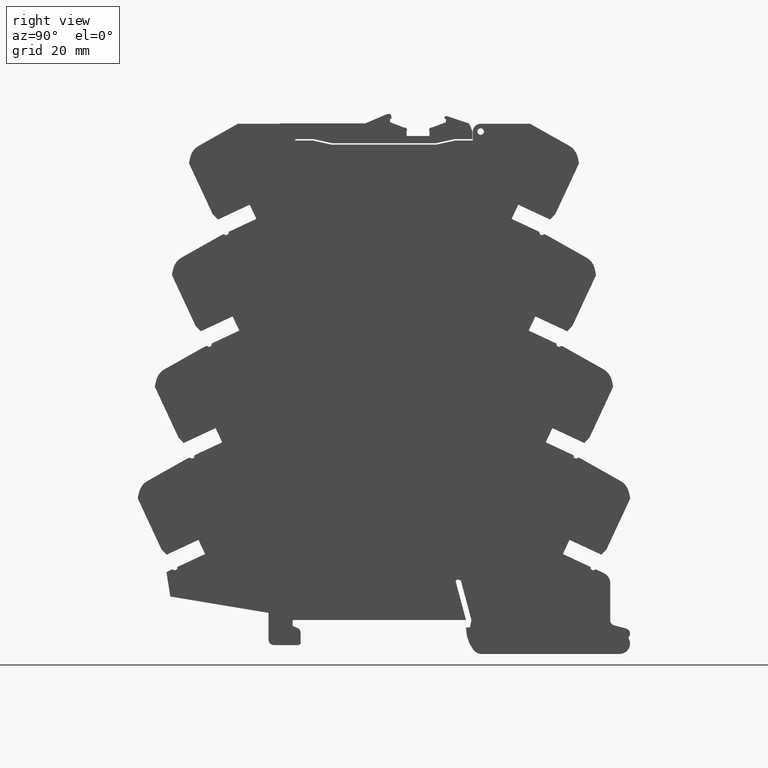
[diagram: clean part render]
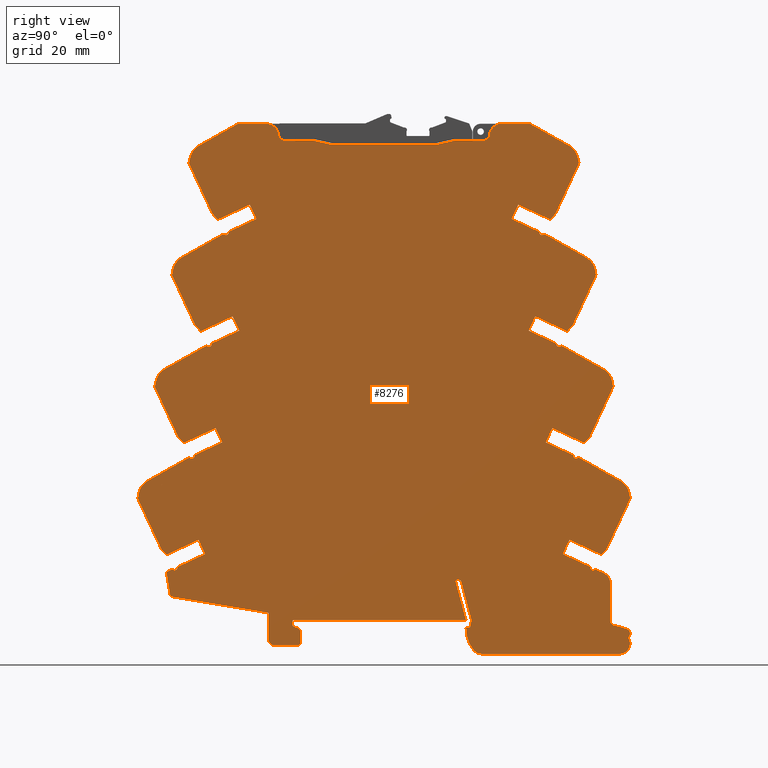
[diagram: same view with one face highlighted and labeled with its STEP entity id]
A machine part, right view. The second image highlights one B-rep face of the part: STEP entity #8276.
In plain terms, the highlighted planar face has unit normal (-1, 0, 0).
Its self-contained STEP definition (entity closure, byte-faithful):
#9 = LINE ( 'NONE', #3197, #3936 ) ;
#23 = VERTEX_POINT ( 'NONE', #7180 ) ;
#32 = CARTESIAN_POINT ( 'NONE',  ( 0.000000000000000000, 0.5532677165354330517, 3.614192913385826600 ) ) ;
#38 = CARTESIAN_POINT ( 'NONE',  ( 0.000000000000000000, 1.859645669291165371, -0.1374999999997049416 ) ) ;
#48 = CARTESIAN_POINT ( 'NONE',  ( 1.622034746238155731E-16, -1.236377952755905563, 3.017933070866142042 ) ) ;
#60 = EDGE_CURVE ( 'NONE', #23, #8819, #144, .T. ) ;
#66 = CARTESIAN_POINT ( 'NONE',  ( 0.000000000000000000, 1.612559055118110374, 2.595964566929133799 ) ) ;
#74 = VECTOR ( 'NONE', #1885, 39.37007874015748143 ) ;
#77 = EDGE_CURVE ( 'NONE', #957, #5375, #206, .T. ) ;
#81 = VERTEX_POINT ( 'NONE', #5911 ) ;
#82 = DIRECTION ( 'NONE',  ( -1.000000000000000000, -0.000000000000000000, -0.000000000000000000 ) ) ;
#86 = CARTESIAN_POINT ( 'NONE',  ( 0.000000000000000000, 1.268425196850393677, 3.017933070866142042 ) ) ;
#98 = VECTOR ( 'NONE', #2000, 39.37007874015748854 ) ;
#103 = AXIS2_PLACEMENT_3D ( 'NONE', #2247, #1521, #684 ) ;
#104 = DIRECTION ( 'NONE',  ( 0.000000000000000000, 1.000000000000000000, 0.000000000000000000 ) ) ;
#105 = VERTEX_POINT ( 'NONE', #5752 ) ;
#112 = CIRCLE ( 'NONE', #447, 0.03937007874015751446 ) ;
#116 = CARTESIAN_POINT ( 'NONE',  ( 0.000000000000000000, 1.483818897637795287, 3.437893700787401752 ) ) ;
#120 = VERTEX_POINT ( 'NONE', #9819 ) ;
#121 = ORIENTED_EDGE ( 'NONE', *, *, #5277, .F. ) ;
#124 = CIRCLE ( 'NONE', #1628, 0.01968503937007875723 ) ;
#139 = CARTESIAN_POINT ( 'NONE',  ( 0.000000000000000000, -1.637709586678756102, 1.889944859529299359 ) ) ;
#142 = LINE ( 'NONE', #1879, #9076 ) ;
#144 = LINE ( 'NONE', #7439, #6521 ) ;
#145 = CARTESIAN_POINT ( 'NONE',  ( 0.000000000000000000, -0.6119291338582677486, -0.09683581439345276265 ) ) ;
#154 = CARTESIAN_POINT ( 'NONE',  ( 0.000000000000000000, 0.7522805630401850907, -0.2558858267716535573 ) ) ;
#156 = ORIENTED_EDGE ( 'NONE', *, *, #8708, .F. ) ;
#179 = DIRECTION ( 'NONE',  ( -1.000000000000000000, -0.000000000000000000, -0.000000000000000000 ) ) ;
#182 = VERTEX_POINT ( 'NONE', #1142 ) ;
#184 = CIRCLE ( 'NONE', #6030, 0.1318897637795275191 ) ;
#186 = CARTESIAN_POINT ( 'NONE',  ( 0.000000000000000000, -1.342874015748031447, 2.056043307086614202 ) ) ;
#201 = EDGE_CURVE ( 'NONE', #10097, #4370, #2811, .T. ) ;
#202 = ORIENTED_EDGE ( 'NONE', *, *, #1067, .F. ) ;
#204 = CARTESIAN_POINT ( 'NONE',  ( 0.000000000000000000, -1.380229271352389597, 3.573803127451874229 ) ) ;
#206 = LINE ( 'NONE', #253, #6687 ) ;
#219 = CARTESIAN_POINT ( 'NONE',  ( 0.000000000000000000, -0.5212204724409449375, 3.614192913385826600 ) ) ;
#226 = VERTEX_POINT ( 'NONE', #2041 ) ;
#253 = CARTESIAN_POINT ( 'NONE',  ( 0.000000000000000000, 1.503661417322834648, 1.214114173228346472 ) ) ;
#261 = VERTEX_POINT ( 'NONE', #8547 ) ;
#266 = AXIS2_PLACEMENT_3D ( 'NONE', #5137, #3658, #2886 ) ;
#272 = DIRECTION ( 'NONE',  ( 0.000000000000000000, -1.000000000000000000, 0.000000000000000000 ) ) ;
#284 = CARTESIAN_POINT ( 'NONE',  ( 0.000000000000000000, -1.581645631600401947, 2.606040047779204283 ) ) ;
#290 = ORIENTED_EDGE ( 'NONE', *, *, #2918, .F. ) ;
#299 = DIRECTION ( 'NONE',  ( -1.000000000000000000, -0.000000000000000000, -0.000000000000000000 ) ) ;
#345 = CARTESIAN_POINT ( 'NONE',  ( 0.000000000000000000, -1.573067782638980505, 2.645191239139838668 ) ) ;
#349 = CIRCLE ( 'NONE', #6201, 0.01574803149606207944 ) ;
#362 = EDGE_CURVE ( 'NONE', #8590, #9226, #10396, .T. ) ;
#373 = CARTESIAN_POINT ( 'NONE',  ( 0.000000000000000000, 1.742433039213558965, 1.764110886360571007 ) ) ;
#392 = CARTESIAN_POINT ( 'NONE',  ( 0.000000000000000000, 1.798496987887826970, 1.048015725877072812 ) ) ;
#396 = DIRECTION ( 'NONE',  ( -0.000000000000000000, 0.9063659980330339705, -0.4224934054036610376 ) ) ;
#405 = VECTOR ( 'NONE', #2909, 39.37007874015748854 ) ;
#408 = EDGE_CURVE ( 'NONE', #6912, #4734, #7888, .T. ) ;
#425 = ORIENTED_EDGE ( 'NONE', *, *, #5502, .T. ) ;
#427 = PLANE ( 'NONE',  #2661 ) ;
#447 = AXIS2_PLACEMENT_3D ( 'NONE', #7006, #1559, #3694 ) ;
#472 = CARTESIAN_POINT ( 'NONE',  ( 0.000000000000000000, -1.452905480158439122, 3.447969154077102694 ) ) ;
#474 = LINE ( 'NONE', #9148, #98 ) ;
#476 = ORIENTED_EDGE ( 'NONE', *, *, #4352, .T. ) ;
#477 = DIRECTION ( 'NONE',  ( 0.000000000000000000, 1.000000000000000000, -8.673617379883636624E-14 ) ) ;
#481 = CARTESIAN_POINT ( 'NONE',  ( 2.390366994456228591E-16, 1.156535433070866148, 2.288208661417322709 ) ) ;
#493 = CARTESIAN_POINT ( 'NONE',  ( 0.000000000000000000, 1.791614549158956571, -0.1771456692913385977 ) ) ;
#502 = LINE ( 'NONE', #10072, #506 ) ;
#506 = VECTOR ( 'NONE', #5215, 39.37007874015748143 ) ;
#517 = ORIENTED_EDGE ( 'NONE', *, *, #5148, .F. ) ;
#519 = CIRCLE ( 'NONE', #10061, 0.07874015748031502893 ) ;
#524 = CIRCLE ( 'NONE', #4183, 0.01968503937007875723 ) ;
#551 = CARTESIAN_POINT ( 'NONE',  ( 0.000000000000000000, -0.9458267716535433411, 3.023090551181102370 ) ) ;
#565 = DIRECTION ( 'NONE',  ( -1.000000000000000000, -0.000000000000000000, -0.000000000000000000 ) ) ;
#566 = VERTEX_POINT ( 'NONE', #7431 ) ;
#573 = DIRECTION ( 'NONE',  ( -0.000000000000000000, -0.9063118994067296263, 0.4226094426225778244 ) ) ;
#575 = LINE ( 'NONE', #6073, #8568 ) ;
#584 = CARTESIAN_POINT ( 'NONE',  ( 0.000000000000000000, -1.074566929133858206, 2.181161417322834861 ) ) ;
#586 = LINE ( 'NONE', #9311, #4510 ) ;
#588 = VERTEX_POINT ( 'NONE', #8962 ) ;
#604 = CARTESIAN_POINT ( 'NONE',  ( 0.000000000000000000, -1.084904509595696842, 3.740177165354330757 ) ) ;
#606 = VECTOR ( 'NONE', #8559, 39.37007874015748854 ) ;
#620 = DIRECTION ( 'NONE',  ( -1.000000000000000000, -0.000000000000000000, -0.000000000000000000 ) ) ;
#640 = DIRECTION ( 'NONE',  ( -0.000000000000000000, -0.4225449552124951325, 0.9063419668229373283 ) ) ;
#642 = ORIENTED_EDGE ( 'NONE', *, *, #6419, .F. ) ;
#647 = EDGE_CURVE ( 'NONE', #8719, #9053, #916, .T. ) ;
#652 = VERTEX_POINT ( 'NONE', #9453 ) ;
#669 = DIRECTION ( 'NONE',  ( -0.000000000000000000, 0.6852564089022241678, -0.7283018976073232231 ) ) ;
#673 = DIRECTION ( 'NONE',  ( 0.000000000000000000, 1.000000000000000000, -4.142623226213468901E-15 ) ) ;
#684 = DIRECTION ( 'NONE',  ( 0.000000000000000000, 1.000000000000000000, -1.734723475976805714E-15 ) ) ;
#688 = EDGE_CURVE ( 'NONE', #7356, #8810, #1743, .T. ) ;
#698 = AXIS2_PLACEMENT_3D ( 'NONE', #3119, #7857, #8603 ) ;
#720 = DIRECTION ( 'NONE',  ( -1.000000000000000000, -0.000000000000000000, -0.000000000000000000 ) ) ;
#733 = ORIENTED_EDGE ( 'NONE', *, *, #6851, .F. ) ;
#756 = VERTEX_POINT ( 'NONE', #970 ) ;
#760 = CARTESIAN_POINT ( 'NONE',  ( 0.000000000000000000, 0.6341338582677165103, -0.06297244091635118002 ) ) ;
#762 = EDGE_CURVE ( 'NONE', #7890, #8785, #3374, .T. ) ;
#771 = ORIENTED_EDGE ( 'NONE', *, *, #9601, .F. ) ;
#773 = EDGE_CURVE ( 'NONE', #10352, #588, #7262, .T. ) ;
#779 = LINE ( 'NONE', #6968, #606 ) ;
#803 = VERTEX_POINT ( 'NONE', #2660 ) ;
#820 = CARTESIAN_POINT ( 'NONE',  ( 0.000000000000000000, -0.6650787401574802526, -0.007854330708661219629 ) ) ;
#834 = VERTEX_POINT ( 'NONE', #6599 ) ;
#836 = CARTESIAN_POINT ( 'NONE',  ( 1.622034746238155731E-16, -1.365118110236220650, 2.176003937007874089 ) ) ;
#837 = EDGE_CURVE ( 'NONE', #9759, #4653, #3437, .T. ) ;
#862 = VERTEX_POINT ( 'NONE', #6648 ) ;
#875 = CARTESIAN_POINT ( 'NONE',  ( 0.000000000000000000, -1.283858267716535551, 2.083602362204724390 ) ) ;
#879 = LINE ( 'NONE', #4052, #9568 ) ;
#883 = CARTESIAN_POINT ( 'NONE',  ( 3.414809992080330995E-16, 1.116968503937007862, 3.740177165354330757 ) ) ;
#889 = LINE ( 'NONE', #145, #5340 ) ;
#900 = CARTESIAN_POINT ( 'NONE',  ( 0.000000000000000000, 1.315905511811037432, 2.083602362204724390 ) ) ;
#902 = DIRECTION ( 'NONE',  ( -0.000000000000000000, 0.6852564089022168403, -0.7283018976073298845 ) ) ;
#916 = LINE ( 'NONE', #4649, #1848 ) ;
#945 = DIRECTION ( 'NONE',  ( -1.000000000000000000, -0.000000000000000000, -0.000000000000000000 ) ) ;
#948 = VECTOR ( 'NONE', #6956, 39.37007874015748854 ) ;
#955 = VERTEX_POINT ( 'NONE', #4485 ) ;
#957 = VERTEX_POINT ( 'NONE', #7707 ) ;
#960 = CIRCLE ( 'NONE', #8511, 0.1318897637795299616 ) ;
#966 = VECTOR ( 'NONE', #2858, 39.37007874015748854 ) ;
#967 = CARTESIAN_POINT ( 'NONE',  ( 0.000000000000000000, -1.766449744159070967, 1.048015725671031406 ) ) ;
#970 = CARTESIAN_POINT ( 'NONE',  ( 0.000000000000000000, 0.6748818897637796077, 1.968503937017504008E-05 ) ) ;
#978 = CARTESIAN_POINT ( 'NONE',  ( 2.731847993664263711E-16, -1.124488188976378034, 2.288208661417322709 ) ) ;
#983 = DIRECTION ( 'NONE',  ( -0.000000000000000000, -0.9863456701567067109, 0.1646882477990369853 ) ) ;
#997 = DIRECTION ( 'NONE',  ( -0.000000000000000000, 0.8712553356216642397, 0.4908300522082781336 ) ) ;
#1006 = VECTOR ( 'NONE', #1744, 39.37007874015748143 ) ;
#1016 = ORIENTED_EDGE ( 'NONE', *, *, #1952, .F. ) ;
#1028 = DIRECTION ( 'NONE',  ( 0.000000000000000000, 1.000000000000000000, -1.035655806553318000E-14 ) ) ;
#1047 = CARTESIAN_POINT ( 'NONE',  ( 0.000000000000000000, 1.831007254384196870, -0.1023438533225779490 ) ) ;
#1053 = EDGE_CURVE ( 'NONE', #10142, #9226, #7119, .T. ) ;
#1058 = CARTESIAN_POINT ( 'NONE',  ( 0.000000000000000000, -1.365118110236220650, 2.176003937007874089 ) ) ;
#1064 = ORIENTED_EDGE ( 'NONE', *, *, #3536, .F. ) ;
#1067 = EDGE_CURVE ( 'NONE', #5238, #6173, #9609, .T. ) ;
#1089 = ORIENTED_EDGE ( 'NONE', *, *, #5871, .F. ) ;
#1105 = EDGE_CURVE ( 'NONE', #10036, #2798, #2584, .T. ) ;
#1113 = AXIS2_PLACEMENT_3D ( 'NONE', #6377, #3514, #2490 ) ;
#1138 = LINE ( 'NONE', #3583, #7109 ) ;
#1142 = CARTESIAN_POINT ( 'NONE',  ( 0.000000000000000000, 0.5785404504826614502, 0.3031692913385826693 ) ) ;
#1151 = AXIS2_PLACEMENT_3D ( 'NONE', #6443, #7392, #8186 ) ;
#1156 = LINE ( 'NONE', #7567, #3332 ) ;
#1157 = VECTOR ( 'NONE', #2920, 39.37007874015748854 ) ;
#1158 = CIRCLE ( 'NONE', #7023, 0.01968503937007875723 ) ;
#1165 = DIRECTION ( 'NONE',  ( -1.000000000000000000, -0.000000000000000000, -0.000000000000000000 ) ) ;
#1164 = DIRECTION ( 'NONE',  ( 0.000000000000000000, 1.000000000000000000, 6.288372600415746488E-14 ) ) ;
#1166 = DIRECTION ( 'NONE',  ( 0.000000000000000000, 1.000000000000000000, 2.081668171172166620E-14 ) ) ;
#1169 = CIRCLE ( 'NONE', #7030, 0.1318897637795275191 ) ;
#1200 = ORIENTED_EDGE ( 'NONE', *, *, #4567, .F. ) ;
#1201 = CARTESIAN_POINT ( 'NONE',  ( 2.731847993664263711E-16, -1.203307086614173294, 1.339232283464566908 ) ) ;
#1207 = CARTESIAN_POINT ( 'NONE',  ( 0.000000000000000000, 1.476374869293728409, 3.487120372812909430 ) ) ;
#1214 = CARTESIAN_POINT ( 'NONE',  ( 0.000000000000000000, -0.8540551181102362666, -0.1495866141732283550 ) ) ;
#1215 = ORIENTED_EDGE ( 'NONE', *, *, #3980, .F. ) ;
#1229 = VERTEX_POINT ( 'NONE', #2753 ) ;
#1236 = EDGE_CURVE ( 'NONE', #4031, #1702, #8127, .T. ) ;
#1239 = EDGE_CURVE ( 'NONE', #3173, #5261, #9472, .T. ) ;
#1247 = EDGE_CURVE ( 'NONE', #2802, #10198, #6589, .T. ) ;
#1260 = EDGE_CURVE ( 'NONE', #2241, #5238, #3479, .T. ) ;
#1262 = VERTEX_POINT ( 'NONE', #2647 ) ;
#1273 = DIRECTION ( 'NONE',  ( -1.000000000000000000, -0.000000000000000000, -0.000000000000000000 ) ) ;
#1285 = DIRECTION ( 'NONE',  ( 0.000000000000000000, 1.000000000000000000, 3.330669073875466592E-13 ) ) ;
#1287 = ORIENTED_EDGE ( 'NONE', *, *, #1105, .T. ) ;
#1288 = AXIS2_PLACEMENT_3D ( 'NONE', #6138, #7677, #1166 ) ;
#1294 = CARTESIAN_POINT ( 'NONE',  ( 0.000000000000000000, 1.612559055118110374, 2.595964566929133799 ) ) ;
#1295 = EDGE_CURVE ( 'NONE', #3482, #6389, #6637, .T. ) ;
#1314 = EDGE_CURVE ( 'NONE', #834, #3173, #1138, .T. ) ;
#1317 = DIRECTION ( 'NONE',  ( 0.000000000000000000, 1.000000000000000000, 0.000000000000000000 ) ) ;
#1327 = VERTEX_POINT ( 'NONE', #9286 ) ;
#1335 = VERTEX_POINT ( 'NONE', #5266 ) ;
#1339 = CARTESIAN_POINT ( 'NONE',  ( 0.000000000000000000, -1.253228346456692899, 1.446279527559054978 ) ) ;
#1371 = CARTESIAN_POINT ( 'NONE',  ( 0.000000000000000000, -1.155118110236234452, 2.925531496062992343 ) ) ;
#1372 = VERTEX_POINT ( 'NONE', #9331 ) ;
#1375 = VERTEX_POINT ( 'NONE', #7002 ) ;
#1378 = CARTESIAN_POINT ( 'NONE',  ( 0.000000000000000000, -1.380229271718126149, 3.573803127245835043 ) ) ;
#1382 = EDGE_CURVE ( 'NONE', #7266, #6219, #10178, .T. ) ;
#1409 = EDGE_CURVE ( 'NONE', #2467, #1746, #1420, .T. ) ;
#1410 = ORIENTED_EDGE ( 'NONE', *, *, #1523, .F. ) ;
#1411 = CARTESIAN_POINT ( 'NONE',  ( 0.000000000000000000, -0.6346638410974312361, -0.06115294561836279869 ) ) ;
#1420 = CIRCLE ( 'NONE', #9134, 0.01574803149606371702 ) ;
#1426 = CARTESIAN_POINT ( 'NONE',  ( 0.000000000000000000, 1.307283464566929121, 3.059232283464566660 ) ) ;
#1436 = CIRCLE ( 'NONE', #266, 0.2637795275590551491 ) ;
#1458 = LINE ( 'NONE', #7421, #9720 ) ;
#1463 = LINE ( 'NONE', #1568, #1945 ) ;
#1471 = EDGE_CURVE ( 'NONE', #6000, #8532, #6265, .T. ) ;
#1491 = CARTESIAN_POINT ( 'NONE',  ( 0.000000000000000000, -1.447677165354330775, 1.225295275590551292 ) ) ;
#1512 = EDGE_CURVE ( 'NONE', #8105, #3574, #2257, .T. ) ;
#1518 = CIRCLE ( 'NONE', #3182, 0.04724409448818814306 ) ;
#1521 = DIRECTION ( 'NONE',  ( -1.000000000000000000, -0.000000000000000000, -0.000000000000000000 ) ) ;
#1523 = EDGE_CURVE ( 'NONE', #4527, #10097, #9440, .T. ) ;
#1529 = CARTESIAN_POINT ( 'NONE',  ( 1.280553747030124062E-16, 1.573425196850393837, 0.3997047244094488194 ) ) ;
#1559 = DIRECTION ( 'NONE',  ( -1.000000000000000000, -0.000000000000000000, -0.000000000000000000 ) ) ;
#1568 = CARTESIAN_POINT ( 'NONE',  ( 0.000000000000000000, 1.525905511811023629, 1.334074803149606359 ) ) ;
#1569 = VERTEX_POINT ( 'NONE', #8695 ) ;
#1584 = LINE ( 'NONE', #2311, #6195 ) ;
#1591 = LINE ( 'NONE', #9529, #4160 ) ;
#1606 = EDGE_CURVE ( 'NONE', #5417, #6699, #4938, .T. ) ;
#1617 = AXIS2_PLACEMENT_3D ( 'NONE', #1047, #4230, #3443 ) ;
#1628 = AXIS2_PLACEMENT_3D ( 'NONE', #5713, #8935, #1736 ) ;
#1630 = VERTEX_POINT ( 'NONE', #6467 ) ;
#1631 = CARTESIAN_POINT ( 'NONE',  ( 0.000000000000000000, -1.214133858267716581, 2.897972440944881711 ) ) ;
#1650 = VERTEX_POINT ( 'NONE', #2590 ) ;
#1653 = CARTESIAN_POINT ( 'NONE',  ( 0.000000000000000000, -0.6316141732283465648, -0.1692716535433071157 ) ) ;
#1656 = CARTESIAN_POINT ( 'NONE',  ( 0.000000000000000000, -1.275236220472441007, 3.059232283464566660 ) ) ;
#1672 = ORIENTED_EDGE ( 'NONE', *, *, #5419, .F. ) ;
#1680 = AXIS2_PLACEMENT_3D ( 'NONE', #9996, #7671, #1317 ) ;
#1693 = EDGE_CURVE ( 'NONE', #6995, #8144, #2636, .T. ) ;
#1694 = LINE ( 'NONE', #116, #4853 ) ;
#1698 = ORIENTED_EDGE ( 'NONE', *, *, #4814, .F. ) ;
#1702 = VERTEX_POINT ( 'NONE', #186 ) ;
#1706 = DIRECTION ( 'NONE',  ( -0.000000000000000000, 1.000000000000000000, -0.000000000000000000 ) ) ;
#1707 = CARTESIAN_POINT ( 'NONE',  ( 0.000000000000000000, 1.374921259842519783, 2.056043307086614202 ) ) ;
#1712 = DIRECTION ( 'NONE',  ( -1.000000000000000000, -0.000000000000000000, -0.000000000000000000 ) ) ;
#1717 = LINE ( 'NONE', #4002, #6043 ) ;
#1722 = CARTESIAN_POINT ( 'NONE',  ( 0.000000000000000000, 0.9016357376320472961, 3.740177165354330757 ) ) ;
#1730 = EDGE_CURVE ( 'NONE', #803, #7356, #5680, .T. ) ;
#1736 = DIRECTION ( 'NONE',  ( 0.000000000000000000, 1.000000000000000000, 5.551115123125778284E-14 ) ) ;
#1740 = EDGE_CURVE ( 'NONE', #3892, #8105, #6783, .T. ) ;
#1743 = CIRCLE ( 'NONE', #5592, 0.1318897637795275191 ) ;
#1744 = DIRECTION ( 'NONE',  ( -0.000000000000000000, -0.9063118994067314027, 0.4226094426225741607 ) ) ;
#1745 = CARTESIAN_POINT ( 'NONE',  ( 0.000000000000000000, 1.444645669291338530, 1.241673228346456659 ) ) ;
#1746 = VERTEX_POINT ( 'NONE', #5310 ) ;
#1795 = ORIENTED_EDGE ( 'NONE', *, *, #9726, .T. ) ;
#1802 = VERTEX_POINT ( 'NONE', #2017 ) ;
#1823 = VERTEX_POINT ( 'NONE', #7580 ) ;
#1838 = ORIENTED_EDGE ( 'NONE', *, *, #4539, .T. ) ;
#1843 = VECTOR ( 'NONE', #8310, 39.37007874015748854 ) ;
#1848 = VECTOR ( 'NONE', #4205, 39.37007874015748143 ) ;
#1849 = CARTESIAN_POINT ( 'NONE',  ( 0.000000000000000000, -1.837992125984251990, 0.9121062992125984481 ) ) ;
#1859 = CARTESIAN_POINT ( 'NONE',  ( 0.000000000000000000, 1.334959146098503968, 2.078656677677677145 ) ) ;
#1868 = ORIENTED_EDGE ( 'NONE', *, *, #9800, .T. ) ;
#1869 = ORIENTED_EDGE ( 'NONE', *, *, #8512, .F. ) ;
#1879 = CARTESIAN_POINT ( 'NONE',  ( 0.000000000000000000, 1.106614173228346543, 2.181161417322834861 ) ) ;
#1885 = DIRECTION ( 'NONE',  ( -0.000000000000000000, 0.6852564089022220584, 0.7283018976073251105 ) ) ;
#1906 = FACE_OUTER_BOUND ( 'NONE', #2927, .T. ) ;
#1922 = EDGE_CURVE ( 'NONE', #1335, #2241, #5364, .T. ) ;
#1928 = DIRECTION ( 'NONE',  ( -0.000000000000000000, 0.9063311474839930160, 0.4225681614844500333 ) ) ;
#1945 = VECTOR ( 'NONE', #573, 39.37007874015748854 ) ;
#1946 = CARTESIAN_POINT ( 'NONE',  ( 1.622034746238155731E-16, -1.622598425196850380, 0.4921456692913385722 ) ) ;
#1947 = EDGE_CURVE ( 'NONE', #4492, #1229, #2379, .T. ) ;
#1952 = EDGE_CURVE ( 'NONE', #226, #6994, #1591, .T. ) ;
#1954 = DIRECTION ( 'NONE',  ( -1.000000000000000000, 0.000000000000000000, 0.000000000000000000 ) ) ;
#1959 = DIRECTION ( 'NONE',  ( -0.000000000000000000, -0.1821747201662075044, -0.9832661752203031291 ) ) ;
#1961 = ORIENTED_EDGE ( 'NONE', *, *, #5346, .F. ) ;
#1963 = VECTOR ( 'NONE', #5362, 39.37007874015748854 ) ;
#1964 = VECTOR ( 'NONE', #3718, 39.37007874015748854 ) ;
#1966 = DIRECTION ( 'NONE',  ( -0.000000000000000000, -0.9063449952397452103, 0.4225384593192270666 ) ) ;
#1992 = DIRECTION ( 'NONE',  ( -0.000000000000000000, -0.4226482349094370927, -0.9062938097151150840 ) ) ;
#2000 = DIRECTION ( 'NONE',  ( -0.000000000000000000, -0.4226482349094370927, -0.9062938097151150840 ) ) ;
#2017 = CARTESIAN_POINT ( 'NONE',  ( 0.000000000000000000, -1.830548097599606239, 0.9613329714233089796 ) ) ;
#2022 = ORIENTED_EDGE ( 'NONE', *, *, #9293, .F. ) ;
#2037 = DIRECTION ( 'NONE',  ( -0.000000000000000000, 0.9763014966003544792, 0.2164148510059051012 ) ) ;
#2041 = CARTESIAN_POINT ( 'NONE',  ( 0.000000000000000000, 1.654645669291338717, 0.4921456692913385722 ) ) ;
#2043 = EDGE_CURVE ( 'NONE', #1630, #9153, #8043, .T. ) ;
#2048 = ORIENTED_EDGE ( 'NONE', *, *, #4984, .T. ) ;
#2049 = DIRECTION ( 'NONE',  ( -1.000000000000000000, -0.000000000000000000, -0.000000000000000000 ) ) ;
#2055 = EDGE_CURVE ( 'NONE', #7987, #4653, #1694, .T. ) ;
#2060 = VERTEX_POINT ( 'NONE', #66 ) ;
#2073 = VERTEX_POINT ( 'NONE', #8985 ) ;
#2096 = VERTEX_POINT ( 'NONE', #373 ) ;
#2097 = LINE ( 'NONE', #5280, #4276 ) ;
#2108 = ORIENTED_EDGE ( 'NONE', *, *, #6220, .F. ) ;
#2113 = DIRECTION ( 'NONE',  ( -0.000000000000000000, -0.4226482349094408120, -0.9062938097151134187 ) ) ;
#2124 = VERTEX_POINT ( 'NONE', #5928 ) ;
#2134 = CARTESIAN_POINT ( 'NONE',  ( 0.000000000000000000, 0.5682945989547165677, 0.2913582677165405532 ) ) ;
#2143 = EDGE_CURVE ( 'NONE', #5418, #9591, #8556, .T. ) ;
#2147 = EDGE_CURVE ( 'NONE', #566, #1569, #9946, .T. ) ;
#2150 = VERTEX_POINT ( 'NONE', #1946 ) ;
#2152 = ORIENTED_EDGE ( 'NONE', *, *, #9607, .F. ) ;
#2154 = LINE ( 'NONE', #9304, #6372 ) ;
#2169 = EDGE_CURVE ( 'NONE', #3050, #23, #8415, .T. ) ;
#2180 = ORIENTED_EDGE ( 'NONE', *, *, #2910, .F. ) ;
#2200 = VECTOR ( 'NONE', #6836, 39.37007874015748854 ) ;
#2205 = DIRECTION ( 'NONE',  ( 0.000000000000000000, 1.000000000000000000, -5.204170427930722944E-14 ) ) ;
#2217 = VERTEX_POINT ( 'NONE', #472 ) ;
#2238 = EDGE_CURVE ( 'NONE', #9296, #7987, #4513, .T. ) ;
#2241 = VERTEX_POINT ( 'NONE', #3811 ) ;
#2247 = CARTESIAN_POINT ( 'NONE',  ( 0.000000000000000000, 0.5785404466241811372, 0.2834842519685039641 ) ) ;
#2254 = CARTESIAN_POINT ( 'NONE',  ( 0.000000000000000000, -1.342874015748031447, 2.056043307086614202 ) ) ;
#2257 = CIRCLE ( 'NONE', #3582, 0.007874015748031312073 ) ;
#2261 = VERTEX_POINT ( 'NONE', #8671 ) ;
#2266 = DIRECTION ( 'NONE',  ( -0.000000000000000000, 1.000000000000000000, -0.000000000000000000 ) ) ;
#2277 = ORIENTED_EDGE ( 'NONE', *, *, #2055, .F. ) ;
#2288 = DIRECTION ( 'NONE',  ( 0.000000000000000000, 1.000000000000000000, 0.000000000000000000 ) ) ;
#2301 = DIRECTION ( 'NONE',  ( -0.000000000000000000, -0.9060307998453015488, 0.4232117551908062270 ) ) ;
#2308 = VERTEX_POINT ( 'NONE', #1371 ) ;
#2311 = CARTESIAN_POINT ( 'NONE',  ( 0.000000000000000000, -1.403976377952755872, 2.217303149606299151 ) ) ;
#2326 = ORIENTED_EDGE ( 'NONE', *, *, #8501, .T. ) ;
#2341 = CIRCLE ( 'NONE', #6522, 0.01574803149605634098 ) ;
#2349 = CARTESIAN_POINT ( 'NONE',  ( 2.731847993664263711E-16, -0.9957480314960629464, 3.130137795275591106 ) ) ;
#2360 = VERTEX_POINT ( 'NONE', #3342 ) ;
#2367 = ORIENTED_EDGE ( 'NONE', *, *, #1606, .T. ) ;
#2377 = LINE ( 'NONE', #8741, #7206 ) ;
#2379 = LINE ( 'NONE', #6202, #7879 ) ;
#2386 = CARTESIAN_POINT ( 'NONE',  ( 1.195183497228114295E-16, -0.9957480314960629464, 3.130137795275591106 ) ) ;
#2392 = CARTESIAN_POINT ( 'NONE',  ( 0.000000000000000000, -1.411967020114252014, 1.236727543819397646 ) ) ;
#2400 = EDGE_CURVE ( 'NONE', #1375, #3319, #1518, .T. ) ;
#2401 = EDGE_CURVE ( 'NONE', #9310, #10352, #8827, .T. ) ;
#2405 = VERTEX_POINT ( 'NONE', #154 ) ;
#2418 = ORIENTED_EDGE ( 'NONE', *, *, #3545, .F. ) ;
#2467 = VERTEX_POINT ( 'NONE', #3290 ) ;
#2469 = DIRECTION ( 'NONE',  ( -1.000000000000000000, -0.000000000000000000, -0.000000000000000000 ) ) ;
#2475 = VERTEX_POINT ( 'NONE', #9670 ) ;
#2479 = CARTESIAN_POINT ( 'NONE',  ( 0.000000000000000000, 0.5975546048119901865, 0.2885795992000897980 ) ) ;
#2490 = DIRECTION ( 'NONE',  ( 0.000000000000000000, 1.000000000000000000, 0.000000000000000000 ) ) ;
#2499 = DIRECTION ( 'NONE',  ( 0.000000000000000000, 1.000000000000000000, 0.000000000000000000 ) ) ;
#2507 = AXIS2_PLACEMENT_3D ( 'NONE', #3652, #6874, #9097 ) ;
#2513 = VECTOR ( 'NONE', #1959, 39.37007874015748854 ) ;
#2534 = EDGE_CURVE ( 'NONE', #5944, #2475, #3593, .T. ) ;
#2536 = ORIENTED_EDGE ( 'NONE', *, *, #1247, .F. ) ;
#2540 = VERTEX_POINT ( 'NONE', #5178 ) ;
#2548 = ORIENTED_EDGE ( 'NONE', *, *, #3425, .F. ) ;
#2552 = LINE ( 'NONE', #5741, #7909 ) ;
#2584 = CIRCLE ( 'NONE', #8629, 0.01968503937007875723 ) ;
#2590 = CARTESIAN_POINT ( 'NONE',  ( 0.000000000000000000, -1.540818896248740133, 0.3950466610211732510 ) ) ;
#2594 = DIRECTION ( 'NONE',  ( -0.000000000000000000, 0.2588284010527419632, -0.9659233193211979041 ) ) ;
#2602 = DIRECTION ( 'NONE',  ( -0.000000000000000000, 1.000000000000000000, -0.000000000000000000 ) ) ;
#2607 = DIRECTION ( 'NONE',  ( -0.000000000000000000, 0.8712553356216639067, -0.4908300522082789108 ) ) ;
#2636 = LINE ( 'NONE', #967, #7907 ) ;
#2638 = ORIENTED_EDGE ( 'NONE', *, *, #8717, .F. ) ;
#2642 = DIRECTION ( 'NONE',  ( 0.000000000000000000, 1.000000000000000000, 0.000000000000000000 ) ) ;
#2647 = CARTESIAN_POINT ( 'NONE',  ( 1.536664496436147444E-16, 1.285275590551181235, 1.446279527559054978 ) ) ;
#2650 = DIRECTION ( 'NONE',  ( -0.000000000000000000, 0.9063659980330334154, -0.4224934054036617592 ) ) ;
#2656 = CIRCLE ( 'NONE', #10060, 0.01574803149606836261 ) ;
#2660 = CARTESIAN_POINT ( 'NONE',  ( 0.000000000000000000, 1.374921259842519783, 2.056043307086614202 ) ) ;
#2661 = AXIS2_PLACEMENT_3D ( 'NONE', #8422, #1954, #272 ) ;
#2680 = EDGE_CURVE ( 'NONE', #1372, #9296, #5197, .T. ) ;
#2685 = DIRECTION ( 'NONE',  ( 0.000000000000000000, 1.000000000000000000, -6.938893903910159154E-14 ) ) ;
#2698 = CARTESIAN_POINT ( 'NONE',  ( 1.280553747030124062E-16, -1.541377952755905500, 0.3997047244094488194 ) ) ;
#2701 = ORIENTED_EDGE ( 'NONE', *, *, #688, .F. ) ;
#2702 = DIRECTION ( 'NONE',  ( -1.000000000000000000, -0.000000000000000000, -0.000000000000000000 ) ) ;
#2704 = ORIENTED_EDGE ( 'NONE', *, *, #4212, .F. ) ;
#2729 = VERTEX_POINT ( 'NONE', #8759 ) ;
#2734 = DIRECTION ( 'NONE',  ( 0.000000000000000000, -1.000000000000000000, 0.000000000000000000 ) ) ;
#2739 = CARTESIAN_POINT ( 'NONE',  ( 0.000000000000000000, -1.302911902004015854, 2.078656677677677145 ) ) ;
#2741 = EDGE_CURVE ( 'NONE', #7308, #566, #524, .T. ) ;
#2753 = CARTESIAN_POINT ( 'NONE',  ( 0.000000000000000000, 1.675275590551181137, 0.3521850393700787785 ) ) ;
#2798 = VERTEX_POINT ( 'NONE', #4255 ) ;
#2802 = VERTEX_POINT ( 'NONE', #2698 ) ;
#2803 = CARTESIAN_POINT ( 'NONE',  ( 0.000000000000000000, 1.870039370078740104, 0.9121062992125984481 ) ) ;
#2811 = LINE ( 'NONE', #1201, #5186 ) ;
#2843 = CARTESIAN_POINT ( 'NONE',  ( 0.000000000000000000, -0.6729527559055118457, -0.007854330708661318508 ) ) ;
#2846 = CIRCLE ( 'NONE', #7379, 0.01968503937007875723 ) ;
#2850 = EDGE_CURVE ( 'NONE', #5417, #3084, #9587, .T. ) ;
#2858 = DIRECTION ( 'NONE',  ( -0.000000000000000000, -0.9063118994067299594, -0.4226094426225769918 ) ) ;
#2862 = CIRCLE ( 'NONE', #7910, 0.07874015748031502893 ) ;
#2868 = LINE ( 'NONE', #1294, #3289 ) ;
#2886 = DIRECTION ( 'NONE',  ( 0.000000000000000000, 1.000000000000000000, 0.000000000000000000 ) ) ;
#2889 = LINE ( 'NONE', #1378, #3623 ) ;
#2909 = DIRECTION ( 'NONE',  ( -0.000000000000000000, 0.9063311474839935711, -0.4225681614844487566 ) ) ;
#2910 = EDGE_CURVE ( 'NONE', #3469, #105, #2862, .T. ) ;
#2912 = LINE ( 'NONE', #7646, #10372 ) ;
#2918 = EDGE_CURVE ( 'NONE', #8092, #10142, #10216, .T. ) ;
#2920 = DIRECTION ( 'NONE',  ( -0.000000000000000000, -0.9061255465370068318, -0.4230088579604574517 ) ) ;
#2927 = EDGE_LOOP ( 'NONE', ( #733, #4682, #6808, #8966, #3880, #10223, #1215, #7168, #3864, #5063, #2638, #5831, #2701, #3598, #1868, #425, #2022, #6805, #6527, #2048, #4144, #156, #9653, #3403, #6981, #7526, #5499, #9363, #7747, #9605, #4402, #5360, #2277, #10279, #6630, #4050, #3984, #202, #5827, #5217, #5949, #4283, #8672, #6501, #3440, #6513, #7415, #7556, #5655, #7851, #9004, #8458, #1869, #8003, #8899, #3887, #290, #8933, #7051, #1287, #6959, #4607, #8080, #2367, #1089, #6841, #6458, #6732, #1064, #2704, #6447, #4921, #7682, #10163, #6009, #6606, #8844, #2418, #10364, #1961, #7866, #1410, #4733, #10328, #5117, #7099, #121, #10301, #9854, #6928, #7292, #9544, #3631, #2536, #1838, #10288, #7251, #517, #6124, #5595, #9101, #4789, #7717, #642, #771, #8843, #8467, #7057, #3728, #6177, #2953, #476, #7446, #7107, #5235, #7386, #3418, #3964, #7634, #2548, #3575, #2108, #2180, #3971, #2326, #1698, #4281, #1200, #10014, #4621, #2152, #3685, #4338, #7426, #8204, #1016, #8190, #8867, #5812, #1672, #1795 ) ) ;
#2940 = EDGE_CURVE ( 'NONE', #5473, #8144, #9321, .T. ) ;
#2947 = VECTOR ( 'NONE', #5181, 39.37007874015748854 ) ;
#2953 = ORIENTED_EDGE ( 'NONE', *, *, #762, .F. ) ;
#2959 = DIRECTION ( 'NONE',  ( -0.000000000000000000, 1.000000000000000000, -0.000000000000000000 ) ) ;
#2970 = CARTESIAN_POINT ( 'NONE',  ( 0.000000000000000000, 1.347541055395133913, 3.458893467453657777 ) ) ;
#2993 = CIRCLE ( 'NONE', #4831, 0.09055118110236221041 ) ;
#3013 = CARTESIAN_POINT ( 'NONE',  ( 0.000000000000000000, -0.6650787401575432023, -0.03828584705646409514 ) ) ;
#3022 = CARTESIAN_POINT ( 'NONE',  ( 0.000000000000000000, -1.572974126305641818, 1.775035199534586550 ) ) ;
#3029 = AXIS2_PLACEMENT_3D ( 'NONE', #5371, #9273, #8588 ) ;
#3039 = EDGE_CURVE ( 'NONE', #8453, #3861, #5879, .T. ) ;
#3050 = VERTEX_POINT ( 'NONE', #8793 ) ;
#3051 = DIRECTION ( 'NONE',  ( -0.000000000000000000, -0.9060307998452998834, -0.4232117551908099462 ) ) ;
#3069 = CARTESIAN_POINT ( 'NONE',  ( 0.000000000000000000, -0.6512992125984251590, -0.09683581987240943989 ) ) ;
#3073 = CARTESIAN_POINT ( 'NONE',  ( 0.000000000000000000, -1.623858267716535408, 0.3612401574803149606 ) ) ;
#3084 = VERTEX_POINT ( 'NONE', #8842 ) ;
#3090 = CARTESIAN_POINT ( 'NONE',  ( 1.195183497228114295E-16, -1.124488188976378034, 2.288208661417322709 ) ) ;
#3119 = CARTESIAN_POINT ( 'NONE',  ( 0.000000000000000000, 1.642007874015748214, 0.2808178800000795117 ) ) ;
#3121 = DIRECTION ( 'NONE',  ( 0.000000000000000000, 1.000000000000000000, 1.761828530288985923E-15 ) ) ;
#3122 = DIRECTION ( 'NONE',  ( 0.000000000000000000, 1.000000000000000000, 3.469446951952430897E-14 ) ) ;
#3146 = CARTESIAN_POINT ( 'NONE',  ( 0.000000000000000000, 1.525905511811023629, 1.334074803149606359 ) ) ;
#3173 = VERTEX_POINT ( 'NONE', #1849 ) ;
#3177 = VECTOR ( 'NONE', #6080, 39.37007874015748143 ) ;
#3182 = AXIS2_PLACEMENT_3D ( 'NONE', #5811, #4917, #104 ) ;
#3197 = CARTESIAN_POINT ( 'NONE',  ( 0.000000000000000000, -1.532716535433070959, 1.375374015748031642 ) ) ;
#3198 = VERTEX_POINT ( 'NONE', #5668 ) ;
#3200 = DIRECTION ( 'NONE',  ( 0.000000000000000000, 1.000000000000000000, 0.000000000000000000 ) ) ;
#3199 = CARTESIAN_POINT ( 'NONE',  ( 0.000000000000000000, -1.576377952755905421, 0.3834055118110236693 ) ) ;
#3207 = VERTEX_POINT ( 'NONE', #1745 ) ;
#3217 = LINE ( 'NONE', #1656, #5177 ) ;
#3225 = EDGE_CURVE ( 'NONE', #261, #6389, #6567, .T. ) ;
#3263 = DIRECTION ( 'NONE',  ( 0.000000000000000000, 1.000000000000000000, 0.000000000000000000 ) ) ;
#3267 = CARTESIAN_POINT ( 'NONE',  ( 0.000000000000000000, -1.580511811023622037, 2.595964566929133799 ) ) ;
#3270 = DIRECTION ( 'NONE',  ( -0.000000000000000000, -0.9060307998452697964, 0.4232117551908743391 ) ) ;
#3286 = EDGE_CURVE ( 'NONE', #5449, #2073, #8818, .T. ) ;
#3289 = VECTOR ( 'NONE', #9178, 39.37007874015748143 ) ;
#3290 = CARTESIAN_POINT ( 'NONE',  ( 0.000000000000000000, 1.742797934805008886, 1.760740481972539406 ) ) ;
#3298 = CARTESIAN_POINT ( 'NONE',  ( 0.000000000000000000, -1.566262501734129842, 2.602669615830823346 ) ) ;
#3314 = VERTEX_POINT ( 'NONE', #6771 ) ;
#3319 = VERTEX_POINT ( 'NONE', #7570 ) ;
#3322 = VECTOR ( 'NONE', #2959, 39.37007874015748143 ) ;
#3332 = VECTOR ( 'NONE', #6078, 39.37007874015748143 ) ;
#3337 = AXIS2_PLACEMENT_3D ( 'NONE', #820, #5437, #3121 ) ;
#3342 = CARTESIAN_POINT ( 'NONE',  ( 0.000000000000000000, 1.476374869230964393, 3.487120373099377613 ) ) ;
#3371 = CARTESIAN_POINT ( 'NONE',  ( 0.000000000000000000, -1.444233968825330949, 2.616964333392858499 ) ) ;
#3374 = LINE ( 'NONE', #6582, #4236 ) ;
#3403 = ORIENTED_EDGE ( 'NONE', *, *, #3855, .T. ) ;
#3412 = DIRECTION ( 'NONE',  ( -0.000000000000000000, -0.2140189285604109370, -0.9768295133839135502 ) ) ;
#3413 = EDGE_CURVE ( 'NONE', #6994, #7266, #474, .T. ) ;
#3418 = ORIENTED_EDGE ( 'NONE', *, *, #7264, .T. ) ;
#3425 = EDGE_CURVE ( 'NONE', #862, #5449, #1436, .T. ) ;
#3437 = LINE ( 'NONE', #5070, #74 ) ;
#3440 = ORIENTED_EDGE ( 'NONE', *, *, #2534, .F. ) ;
#3443 = DIRECTION ( 'NONE',  ( 0.000000000000000000, 1.000000000000000000, 9.974659986866631327E-15 ) ) ;
#3455 = VERTEX_POINT ( 'NONE', #1631 ) ;
#3456 = CARTESIAN_POINT ( 'NONE',  ( 0.000000000000000000, 1.235354330708661630, 1.339232283464566908 ) ) ;
#3463 = LINE ( 'NONE', #9268, #2513 ) ;
#3469 = VERTEX_POINT ( 'NONE', #3972 ) ;
#3472 = CARTESIAN_POINT ( 'NONE',  ( 0.000000000000000000, -1.174171744523700767, 2.920585811535944654 ) ) ;
#3478 = CARTESIAN_POINT ( 'NONE',  ( 8.537024980200825639E-18, -0.6684058085710296027, -0.04542242465164936932 ) ) ;
#3479 = LINE ( 'NONE', #1722, #6439 ) ;
#3482 = VERTEX_POINT ( 'NONE', #3090 ) ;
#3514 = DIRECTION ( 'NONE',  ( 1.000000000000000000, 0.000000000000000000, 0.000000000000000000 ) ) ;
#3519 = CARTESIAN_POINT ( 'NONE',  ( 0.000000000000000000, 1.733761527880449016, 0.9331060656763189298 ) ) ;
#3536 = EDGE_CURVE ( 'NONE', #4061, #3482, #3875, .T. ) ;
#3541 = DIRECTION ( 'NONE',  ( -1.000000000000000000, -0.000000000000000000, -0.000000000000000000 ) ) ;
#3545 = EDGE_CURVE ( 'NONE', #2261, #3667, #9, .T. ) ;
#3573 = VECTOR ( 'NONE', #8769, 39.37007874015748854 ) ;
#3574 = VERTEX_POINT ( 'NONE', #7134 ) ;
#3575 = ORIENTED_EDGE ( 'NONE', *, *, #3947, .F. ) ;
#3582 = AXIS2_PLACEMENT_3D ( 'NONE', #3013, #6217, #10335 ) ;
#3583 = CARTESIAN_POINT ( 'NONE',  ( 0.000000000000000000, -1.661456692913386046, 0.5334448818897638001 ) ) ;
#3593 = LINE ( 'NONE', #9133, #4522 ) ;
#3598 = ORIENTED_EDGE ( 'NONE', *, *, #1730, .F. ) ;
#3606 = VECTOR ( 'NONE', #7223, 39.37007874015748854 ) ;
#3623 = VECTOR ( 'NONE', #6086, 39.37007874015748854 ) ;
#3631 = ORIENTED_EDGE ( 'NONE', *, *, #7310, .F. ) ;
#3652 = CARTESIAN_POINT ( 'NONE',  ( 0.000000000000000000, 0.6581207157742087199, -0.04722440944883976588 ) ) ;
#3653 = VECTOR ( 'NONE', #396, 39.37007874015748143 ) ;
#3658 = DIRECTION ( 'NONE',  ( -1.000000000000000000, -0.000000000000000000, -0.000000000000000000 ) ) ;
#3659 = EDGE_CURVE ( 'NONE', #3084, #3455, #5031, .T. ) ;
#3660 = VERTEX_POINT ( 'NONE', #4122 ) ;
#3667 = VERTEX_POINT ( 'NONE', #8139 ) ;
#3685 = ORIENTED_EDGE ( 'NONE', *, *, #1947, .F. ) ;
#3687 = LINE ( 'NONE', #6684, #6862 ) ;
#3694 = DIRECTION ( 'NONE',  ( 0.000000000000000000, 1.000000000000000000, 0.000000000000000000 ) ) ;
#3700 = LINE ( 'NONE', #8706, #4325 ) ;
#3702 = EDGE_CURVE ( 'NONE', #1802, #5261, #6602, .T. ) ;
#3704 = LINE ( 'NONE', #1207, #2947 ) ;
#3711 = VECTOR ( 'NONE', #1966, 39.37007874015748854 ) ;
#3718 = DIRECTION ( 'NONE',  ( -0.000000000000000000, -0.2140189285604919556, -0.9768295133838958977 ) ) ;
#3724 = EDGE_CURVE ( 'NONE', #7633, #2540, #6966, .T. ) ;
#3728 = ORIENTED_EDGE ( 'NONE', *, *, #408, .T. ) ;
#3735 = CARTESIAN_POINT ( 'NONE',  ( 0.000000000000000000, -1.471614173228346534, 1.214114173228346472 ) ) ;
#3758 = EDGE_CURVE ( 'NONE', #1650, #8765, #3942, .T. ) ;
#3764 = DIRECTION ( 'NONE',  ( -0.000000000000000000, -0.4226482349094398683, 0.9062938097151137518 ) ) ;
#3774 = DIRECTION ( 'NONE',  ( -1.000000000000000000, -0.000000000000000000, -0.000000000000000000 ) ) ;
#3776 = CARTESIAN_POINT ( 'NONE',  ( 0.000000000000000000, -1.471614173228346534, 1.214114173228346472 ) ) ;
#3788 = EDGE_CURVE ( 'NONE', #1372, #2360, #3704, .T. ) ;
#3790 = LINE ( 'NONE', #6271, #948 ) ;
#3798 = CIRCLE ( 'NONE', #7499, 0.03937007874015669567 ) ;
#3803 = DIRECTION ( 'NONE',  ( 0.000000000000000000, 1.000000000000000000, -1.734723475976805714E-15 ) ) ;
#3811 = CARTESIAN_POINT ( 'NONE',  ( 0.000000000000000000, 0.9016357375216751402, 3.740177165354330757 ) ) ;
#3855 = EDGE_CURVE ( 'NONE', #7521, #1823, #2097, .T. ) ;
#3861 = VERTEX_POINT ( 'NONE', #9136 ) ;
#3864 = ORIENTED_EDGE ( 'NONE', *, *, #5851, .F. ) ;
#3876 = EDGE_CURVE ( 'NONE', #756, #5522, #779, .T. ) ;
#3875 = LINE ( 'NONE', #584, #8655 ) ;
#3880 = ORIENTED_EDGE ( 'NONE', *, *, #8586, .F. ) ;
#3887 = ORIENTED_EDGE ( 'NONE', *, *, #1053, .F. ) ;
#3892 = VERTEX_POINT ( 'NONE', #1411 ) ;
#3898 = EDGE_CURVE ( 'NONE', #182, #5522, #5116, .T. ) ;
#3900 = DIRECTION ( 'NONE',  ( 0.000000000000000000, 1.000000000000000000, -2.891205793294679411E-15 ) ) ;
#3901 = DIRECTION ( 'NONE',  ( 0.000000000000000000, 1.000000000000000000, 4.142623226213195166E-15 ) ) ;
#3936 = VECTOR ( 'NONE', #5404, 39.37007874015748854 ) ;
#3942 = CIRCLE ( 'NONE', #7482, 0.01968503937007875723 ) ;
#3947 = EDGE_CURVE ( 'NONE', #2405, #862, #8152, .T. ) ;
#3964 = ORIENTED_EDGE ( 'NONE', *, *, #4386, .T. ) ;
#3971 = ORIENTED_EDGE ( 'NONE', *, *, #6378, .F. ) ;
#3972 = CARTESIAN_POINT ( 'NONE',  ( 0.000000000000000000, 1.870354706639271614, -0.1771456692913385977 ) ) ;
#3980 = EDGE_CURVE ( 'NONE', #6997, #1262, #1463, .T. ) ;
#3984 = ORIENTED_EDGE ( 'NONE', *, *, #7801, .F. ) ;
#4002 = CARTESIAN_POINT ( 'NONE',  ( 0.000000000000000000, 1.862595341734673227, 0.9613329712381102343 ) ) ;
#4014 = VECTOR ( 'NONE', #4120, 39.37007874015748143 ) ;
#4031 = VERTEX_POINT ( 'NONE', #9612 ) ;
#4032 = DIRECTION ( 'NONE',  ( 0.000000000000000000, 1.000000000000000000, -3.469446951951287365E-14 ) ) ;
#4050 = ORIENTED_EDGE ( 'NONE', *, *, #3788, .T. ) ;
#4052 = CARTESIAN_POINT ( 'NONE',  ( 0.000000000000000000, -0.6729527559055118457, 0.9188113481142677896 ) ) ;
#4061 = VERTEX_POINT ( 'NONE', #9659 ) ;
#4109 = AXIS2_PLACEMENT_3D ( 'NONE', #2134, #720, #3900 ) ;
#4119 = CIRCLE ( 'NONE', #4466, 0.03937007874015751446 ) ;
#4120 = DIRECTION ( 'NONE',  ( -0.000000000000000000, -0.9060307998452727940, 0.4232117551908678443 ) ) ;
#4122 = CARTESIAN_POINT ( 'NONE',  ( 0.000000000000000000, 1.693503937007873938, 0.5334448818897638001 ) ) ;
#4132 = DIRECTION ( 'NONE',  ( 0.000000000000000000, 1.000000000000000000, 0.000000000000000000 ) ) ;
#4144 = ORIENTED_EDGE ( 'NONE', *, *, #4942, .F. ) ;
#4155 = DIRECTION ( 'NONE',  ( -0.000000000000000000, 0.8712553356216639067, 0.4908300522082789108 ) ) ;
#4160 = VECTOR ( 'NONE', #4729, 39.37007874015748854 ) ;
#4162 = AXIS2_PLACEMENT_3D ( 'NONE', #8146, #2469, #4881 ) ;
#4166 = DIRECTION ( 'NONE',  ( -0.000000000000000000, 0.6852564089022220584, -0.7283018976073251105 ) ) ;
#4171 = EDGE_CURVE ( 'NONE', #2096, #8810, #5064, .T. ) ;
#4178 = CARTESIAN_POINT ( 'NONE',  ( 0.000000000000000000, -1.431652059484330719, 1.236727543819397646 ) ) ;
#4183 = AXIS2_PLACEMENT_3D ( 'NONE', #1653, #7260, #3263 ) ;
#4188 = EDGE_CURVE ( 'NONE', #10217, #6000, #6693, .T. ) ;
#4189 = CIRCLE ( 'NONE', #5518, 0.01968503937007875723 ) ;
#4194 = VERTEX_POINT ( 'NONE', #6746 ) ;
#4205 = DIRECTION ( 'NONE',  ( -0.000000000000000000, -0.4226482349094398683, -0.9062938097151137518 ) ) ;
#4212 = EDGE_CURVE ( 'NONE', #8591, #4061, #10083, .T. ) ;
#4213 = CARTESIAN_POINT ( 'NONE',  ( 0.000000000000000000, -0.9458267716535433411, 3.023090551181102370 ) ) ;
#4223 = CARTESIAN_POINT ( 'NONE',  ( 0.000000000000000000, -0.3791338582677165059, 3.582696850393700672 ) ) ;
#4230 = DIRECTION ( 'NONE',  ( -1.000000000000000000, -0.000000000000000000, -0.000000000000000000 ) ) ;
#4236 = VECTOR ( 'NONE', #2594, 39.37007874015748854 ) ;
#4243 = EDGE_CURVE ( 'NONE', #1569, #3050, #112, .T. ) ;
#4255 = CARTESIAN_POINT ( 'NONE',  ( 0.000000000000000000, -1.190196850393700823, 2.909153543307086753 ) ) ;
#4276 = VECTOR ( 'NONE', #8504, 39.37007874015748143 ) ;
#4281 = ORIENTED_EDGE ( 'NONE', *, *, #3724, .F. ) ;
#4283 = ORIENTED_EDGE ( 'NONE', *, *, #1471, .F. ) ;
#4291 = DIRECTION ( 'NONE',  ( -1.000000000000000000, -0.000000000000000000, -0.000000000000000000 ) ) ;
#4304 = EDGE_CURVE ( 'NONE', #4624, #2150, #3790, .T. ) ;
#4311 = DIRECTION ( 'NONE',  ( -1.000000000000000000, -0.000000000000000000, -0.000000000000000000 ) ) ;
#4325 = VECTOR ( 'NONE', #10298, 39.37007874015748143 ) ;
#4338 = ORIENTED_EDGE ( 'NONE', *, *, #7535, .T. ) ;
#4352 = EDGE_CURVE ( 'NONE', #7890, #8795, #9679, .T. ) ;
#4370 = VERTEX_POINT ( 'NONE', #5326 ) ;
#4371 = LINE ( 'NONE', #1339, #966 ) ;
#4377 = CARTESIAN_POINT ( 'NONE',  ( 0.000000000000000000, 1.733855184254358139, 1.803262105096378187 ) ) ;
#4379 = DIRECTION ( 'NONE',  ( -0.000000000000000000, 0.6852564089022220584, 0.7283018976073251105 ) ) ;
#4386 = EDGE_CURVE ( 'NONE', #3314, #2073, #8014, .T. ) ;
#4400 = VERTEX_POINT ( 'NONE', #3267 ) ;
#4402 = ORIENTED_EDGE ( 'NONE', *, *, #9348, .F. ) ;
#4405 = CARTESIAN_POINT ( 'NONE',  ( 0.000000000000000000, -1.412598425196850416, 1.241673228346456659 ) ) ;
#4454 = CARTESIAN_POINT ( 'NONE',  ( 0.000000000000000000, 1.749930010076509612, -0.03986454894153936696 ) ) ;
#4453 = DIRECTION ( 'NONE',  ( 0.000000000000000000, 1.000000000000000000, 0.000000000000000000 ) ) ;
#4463 = EDGE_CURVE ( 'NONE', #8532, #1335, #10360, .T. ) ;
#4466 = AXIS2_PLACEMENT_3D ( 'NONE', #8194, #945, #3200 ) ;
#4485 = CARTESIAN_POINT ( 'NONE',  ( 0.000000000000000000, -1.444327625158661199, 3.487120372998110174 ) ) ;
#4492 = VERTEX_POINT ( 'NONE', #5686 ) ;
#4510 = VECTOR ( 'NONE', #5407, 39.37007874015748854 ) ;
#4513 = CIRCLE ( 'NONE', #7204, 0.01574803149606562869 ) ;
#4516 = CIRCLE ( 'NONE', #2507, 0.007874015748031449116 ) ;
#4522 = VECTOR ( 'NONE', #6757, 39.37007874015748143 ) ;
#4527 = VERTEX_POINT ( 'NONE', #4405 ) ;
#4530 = VECTOR ( 'NONE', #4895, 39.37007874015748854 ) ;
#4539 = EDGE_CURVE ( 'NONE', #2802, #1650, #10186, .T. ) ;
#4564 = LINE ( 'NONE', #10370, #5797 ) ;
#4566 = CARTESIAN_POINT ( 'NONE',  ( 0.000000000000000000, -1.766449743793334637, 1.048015725877072812 ) ) ;
#4567 = EDGE_CURVE ( 'NONE', #8355, #7633, #7622, .T. ) ;
#4581 = CARTESIAN_POINT ( 'NONE',  ( 0.000000000000000000, 1.727049903308945256, 1.760740481972539406 ) ) ;
#4607 = ORIENTED_EDGE ( 'NONE', *, *, #3659, .F. ) ;
#4621 = ORIENTED_EDGE ( 'NONE', *, *, #9927, .F. ) ;
#4624 = VERTEX_POINT ( 'NONE', #6087 ) ;
#4626 = EDGE_CURVE ( 'NONE', #2124, #5939, #8360, .T. ) ;
#4641 = AXIS2_PLACEMENT_3D ( 'NONE', #10221, #6261, #9482 ) ;
#4644 = DIRECTION ( 'NONE',  ( -1.000000000000000000, -0.000000000000000000, -0.000000000000000000 ) ) ;
#4649 = CARTESIAN_POINT ( 'NONE',  ( 0.000000000000000000, 1.027795275590551283, 3.130137795275591106 ) ) ;
#4651 = CARTESIAN_POINT ( 'NONE',  ( 0.000000000000000000, -1.695002659214460694, 1.760740481972539406 ) ) ;
#4653 = VERTEX_POINT ( 'NONE', #1426 ) ;
#4659 = VECTOR ( 'NONE', #10358, 39.37007874015748143 ) ;
#4682 = ORIENTED_EDGE ( 'NONE', *, *, #77, .F. ) ;
#4707 = EDGE_CURVE ( 'NONE', #9382, #1327, #2889, .T. ) ;
#4729 = DIRECTION ( 'NONE',  ( -0.000000000000000000, -0.9063118994067299594, 0.4226094426225769918 ) ) ;
#4733 = ORIENTED_EDGE ( 'NONE', *, *, #4858, .T. ) ;
#4734 = VERTEX_POINT ( 'NONE', #8625 ) ;
#4749 = CARTESIAN_POINT ( 'NONE',  ( 0.000000000000000000, -1.174171744523700767, 2.920585811535944654 ) ) ;
#4782 = CARTESIAN_POINT ( 'NONE',  ( 0.000000000000000000, 0.4111811023622047312, 3.582696850393700672 ) ) ;
#4787 = AXIS2_PLACEMENT_3D ( 'NONE', #1859, #179, #7306 ) ;
#4789 = ORIENTED_EDGE ( 'NONE', *, *, #2147, .F. ) ;
#4814 = EDGE_CURVE ( 'NONE', #2540, #6207, #4119, .T. ) ;
#4831 = AXIS2_PLACEMENT_3D ( 'NONE', #6751, #3541, #5962 ) ;
#4843 = DIRECTION ( 'NONE',  ( -0.000000000000000000, -0.4225449552125150610, 0.9063419668229281134 ) ) ;
#4853 = VECTOR ( 'NONE', #9737, 39.37007874015748854 ) ;
#4854 = CIRCLE ( 'NONE', #4162, 0.01968503937007875723 ) ;
#4858 = EDGE_CURVE ( 'NONE', #4527, #8521, #124, .T. ) ;
#4881 = DIRECTION ( 'NONE',  ( 0.000000000000000000, 1.000000000000000000, 0.000000000000000000 ) ) ;
#4895 = DIRECTION ( 'NONE',  ( -0.000000000000000000, 0.8712553356216631295, -0.4908300522082800210 ) ) ;
#4902 = CARTESIAN_POINT ( 'NONE',  ( 0.000000000000000000, -1.701714283785952686, 0.9331060656763150440 ) ) ;
#4914 = AXIS2_PLACEMENT_3D ( 'NONE', #9824, #5869, #9187 ) ;
#4917 = DIRECTION ( 'NONE',  ( 1.000000000000000000, 0.000000000000000000, 0.000000000000000000 ) ) ;
#4921 = ORIENTED_EDGE ( 'NONE', *, *, #3039, .T. ) ;
#4925 = CARTESIAN_POINT ( 'NONE',  ( 0.000000000000000000, 1.479724409448818889, 1.225295275590551292 ) ) ;
#4938 = LINE ( 'NONE', #284, #7045 ) ;
#4939 = VECTOR ( 'NONE', #997, 39.37007874015748854 ) ;
#4942 = EDGE_CURVE ( 'NONE', #2060, #120, #2868, .T. ) ;
#4945 = CARTESIAN_POINT ( 'NONE',  ( 1.707404996040165498E-16, 1.116968503937007862, 3.740177165354330757 ) ) ;
#4962 = CIRCLE ( 'NONE', #7825, 0.01574803149607355290 ) ;
#4984 = EDGE_CURVE ( 'NONE', #1630, #120, #2912, .T. ) ;
#4992 = CARTESIAN_POINT ( 'NONE',  ( 1.536664496436147444E-16, 1.235354330708661630, 1.339232283464566908 ) ) ;
#5008 = EDGE_CURVE ( 'NONE', #955, #2217, #9288, .T. ) ;
#5022 = EDGE_CURVE ( 'NONE', #652, #1823, #960, .T. ) ;
#5029 = CARTESIAN_POINT ( 'NONE',  ( 0.000000000000000000, 1.222244094488188937, 2.909153543307086753 ) ) ;
#5031 = LINE ( 'NONE', #9673, #4939 ) ;
#5061 = LINE ( 'NONE', #2803, #10064 ) ;
#5063 = ORIENTED_EDGE ( 'NONE', *, *, #1409, .F. ) ;
#5064 = LINE ( 'NONE', #4377, #7145 ) ;
#5065 = CARTESIAN_POINT ( 'NONE',  ( 0.000000000000000000, 1.246181102362204696, 2.897972440944881711 ) ) ;
#5070 = CARTESIAN_POINT ( 'NONE',  ( 0.000000000000000000, 1.307283464566929121, 3.059232283464566660 ) ) ;
#5111 = VECTOR ( 'NONE', #902, 39.37007874015748854 ) ;
#5113 = DIRECTION ( 'NONE',  ( -0.000000000000000000, 0.9063659980330334154, 0.4224934054036617592 ) ) ;
#5116 = CIRCLE ( 'NONE', #103, 0.01968503937007875723 ) ;
#5117 = ORIENTED_EDGE ( 'NONE', *, *, #2940, .T. ) ;
#5128 = DIRECTION ( 'NONE',  ( 0.000000000000000000, -1.000000000000000000, 0.000000000000000000 ) ) ;
#5132 = LINE ( 'NONE', #8353, #5179 ) ;
#5137 = CARTESIAN_POINT ( 'NONE',  ( 0.000000000000000000, 0.8979133849622047414, -0.06299379765395629605 ) ) ;
#5148 = EDGE_CURVE ( 'NONE', #8819, #10218, #6324, .T. ) ;
#5157 = CARTESIAN_POINT ( 'NONE',  ( 0.000000000000000000, 1.760118110236220446, -0.001835537448445622149 ) ) ;
#5177 = VECTOR ( 'NONE', #4843, 39.37007874015748854 ) ;
#5178 = CARTESIAN_POINT ( 'NONE',  ( 0.000000000000000000, 1.870377333124354280, -0.1023438533225779490 ) ) ;
#5179 = VECTOR ( 'NONE', #6767, 39.37007874015748854 ) ;
#5181 = DIRECTION ( 'NONE',  ( -0.000000000000000000, -0.2140189285604919556, 0.9768295133838958977 ) ) ;
#5186 = VECTOR ( 'NONE', #6913, 39.37007874015748854 ) ;
#5193 = VERTEX_POINT ( 'NONE', #8117 ) ;
#5195 = VECTOR ( 'NONE', #2301, 39.37007874015748854 ) ;
#5197 = CIRCLE ( 'NONE', #8906, 0.01574803149606562869 ) ;
#5207 = CIRCLE ( 'NONE', #698, 0.07874015748031366890 ) ;
#5215 = DIRECTION ( 'NONE',  ( -0.000000000000000000, 0.6852564089022220584, 0.7283018976073251105 ) ) ;
#5217 = ORIENTED_EDGE ( 'NONE', *, *, #1922, .F. ) ;
#5224 = CARTESIAN_POINT ( 'NONE',  ( 0.000000000000000000, -1.452905474120094409, 3.447969181637432712 ) ) ;
#5235 = ORIENTED_EDGE ( 'NONE', *, *, #3876, .F. ) ;
#5238 = VERTEX_POINT ( 'NONE', #4945 ) ;
#5253 = DIRECTION ( 'NONE',  ( -1.000000000000000000, -0.000000000000000000, -0.000000000000000000 ) ) ;
#5261 = VERTEX_POINT ( 'NONE', #9761 ) ;
#5262 = DIRECTION ( 'NONE',  ( 0.000000000000000000, 1.000000000000000000, 2.663071586167573514E-15 ) ) ;
#5266 = CARTESIAN_POINT ( 'NONE',  ( 0.000000000000000000, 0.8114173228343110056, 3.657381889759799165 ) ) ;
#5277 = EDGE_CURVE ( 'NONE', #1802, #6995, #6486, .T. ) ;
#5280 = CARTESIAN_POINT ( 'NONE',  ( 0.000000000000000000, 1.605115026774043496, 2.645191238954645474 ) ) ;
#5297 = CARTESIAN_POINT ( 'NONE',  ( 0.000000000000000000, -1.451771653543306950, 3.437893700787401752 ) ) ;
#5310 = CARTESIAN_POINT ( 'NONE',  ( 1.280553747030124062E-16, 1.741299212598425239, 1.754035433070866290 ) ) ;
#5326 = CARTESIAN_POINT ( 'NONE',  ( 1.195183497228114295E-16, -1.253228346456692899, 1.446279527559054978 ) ) ;
#5340 = VECTOR ( 'NONE', #7285, 39.37007874015748143 ) ;
#5346 = EDGE_CURVE ( 'NONE', #4370, #9034, #4371, .T. ) ;
#5360 = ORIENTED_EDGE ( 'NONE', *, *, #837, .T. ) ;
#5362 = DIRECTION ( 'NONE',  ( -0.000000000000000000, -0.4225449552125157826, -0.9063419668229275583 ) ) ;
#5364 = CIRCLE ( 'NONE', #9908, 0.09055118110236097528 ) ;
#5366 = VERTEX_POINT ( 'NONE', #6788 ) ;
#5371 = CARTESIAN_POINT ( 'NONE',  ( 0.000000000000000000, -1.302911902004015854, 2.078656677677677145 ) ) ;
#5375 = VERTEX_POINT ( 'NONE', #392 ) ;
#5387 = DIRECTION ( 'NONE',  ( 0.000000000000000000, 1.000000000000000000, 9.974659986866631327E-15 ) ) ;
#5394 = DIRECTION ( 'NONE',  ( -1.000000000000000000, -0.000000000000000000, -0.000000000000000000 ) ) ;
#5399 = LINE ( 'NONE', #2254, #4659 ) ;
#5403 = EDGE_CURVE ( 'NONE', #8355, #5421, #3798, .T. ) ;
#5404 = DIRECTION ( 'NONE',  ( -0.000000000000000000, -0.4225449552125170594, 0.9063419668229270032 ) ) ;
#5407 = DIRECTION ( 'NONE',  ( -0.000000000000000000, 0.6852564089022168403, -0.7283018976073298845 ) ) ;
#5415 = CARTESIAN_POINT ( 'NONE',  ( 0.000000000000000000, 0.9016357374113032064, 3.649625984251968713 ) ) ;
#5417 = VERTEX_POINT ( 'NONE', #345 ) ;
#5418 = VERTEX_POINT ( 'NONE', #5474 ) ;
#5419 = EDGE_CURVE ( 'NONE', #8167, #5418, #9188, .T. ) ;
#5421 = VERTEX_POINT ( 'NONE', #7845 ) ;
#5429 = VECTOR ( 'NONE', #1928, 39.37007874015748854 ) ;
#5437 = DIRECTION ( 'NONE',  ( -1.000000000000000000, -0.000000000000000000, -0.000000000000000000 ) ) ;
#5449 = VERTEX_POINT ( 'NONE', #760 ) ;
#5455 = DIRECTION ( 'NONE',  ( 0.000000000000000000, 1.000000000000000000, 0.000000000000000000 ) ) ;
#5473 = VERTEX_POINT ( 'NONE', #1491 ) ;
#5474 = CARTESIAN_POINT ( 'NONE',  ( 0.000000000000000000, 1.871538092285324417, 0.9188113481142677896 ) ) ;
#5492 = CARTESIAN_POINT ( 'NONE',  ( 0.000000000000000000, 1.598309745828622175, 2.602669615830818906 ) ) ;
#5499 = ORIENTED_EDGE ( 'NONE', *, *, #2401, .T. ) ;
#5502 = EDGE_CURVE ( 'NONE', #5919, #7175, #6993, .T. ) ;
#5518 = AXIS2_PLACEMENT_3D ( 'NONE', #3472, #6789, #1285 ) ;
#5522 = VERTEX_POINT ( 'NONE', #2479 ) ;
#5556 = CARTESIAN_POINT ( 'NONE',  ( 0.000000000000000000, 1.479724409448818889, 1.225295275590551292 ) ) ;
#5570 = CARTESIAN_POINT ( 'NONE',  ( 2.731847993664263711E-16, 1.741299212598425239, 1.754035433070866290 ) ) ;
#5585 = CARTESIAN_POINT ( 'NONE',  ( 0.000000000000000000, -1.283226862633937149, 2.078656677677677145 ) ) ;
#5592 = AXIS2_PLACEMENT_3D ( 'NONE', #5685, #1712, #1028 ) ;
#5595 = ORIENTED_EDGE ( 'NONE', *, *, #2169, .F. ) ;
#5603 = LINE ( 'NONE', #5705, #8897 ) ;
#5617 = DIRECTION ( 'NONE',  ( 0.000000000000000000, 1.000000000000000000, -6.033820786006367759E-15 ) ) ;
#5655 = ORIENTED_EDGE ( 'NONE', *, *, #8177, .F. ) ;
#5668 = CARTESIAN_POINT ( 'NONE',  ( 0.000000000000000000, -0.6119291338582677486, -0.09683581713293111515 ) ) ;
#5680 = LINE ( 'NONE', #1707, #4530 ) ;
#5685 = CARTESIAN_POINT ( 'NONE',  ( 0.000000000000000000, 1.605021370400130154, 1.775035199534586550 ) ) ;
#5686 = CARTESIAN_POINT ( 'NONE',  ( 0.000000000000000000, 1.608425196850393757, 0.3834055118110236693 ) ) ;
#5694 = CIRCLE ( 'NONE', #1151, 0.01968503937007875723 ) ;
#5705 = CARTESIAN_POINT ( 'NONE',  ( 0.000000000000000000, -1.622598425196850380, 0.4921456692913385722 ) ) ;
#5707 = VECTOR ( 'NONE', #10011, 39.37007874015748143 ) ;
#5713 = CARTESIAN_POINT ( 'NONE',  ( 0.000000000000000000, -1.431652059484330719, 1.236727543819397646 ) ) ;
#5720 = EDGE_CURVE ( 'NONE', #9153, #4194, #10115, .T. ) ;
#5741 = CARTESIAN_POINT ( 'NONE',  ( 0.000000000000000000, 1.350984251968503802, 2.067224409448818800 ) ) ;
#5752 = CARTESIAN_POINT ( 'NONE',  ( 0.000000000000000000, 1.791614549159220582, -0.2558858267716535573 ) ) ;
#5793 = EDGE_CURVE ( 'NONE', #2798, #3455, #4564, .T. ) ;
#5795 = VECTOR ( 'NONE', #9827, 39.37007874015748854 ) ;
#5797 = VECTOR ( 'NONE', #3051, 39.37007874015748143 ) ;
#5799 = VECTOR ( 'NONE', #5113, 39.37007874015748854 ) ;
#5803 = LINE ( 'NONE', #8968, #6882 ) ;
#5811 = CARTESIAN_POINT ( 'NONE',  ( 0.000000000000000000, -0.7323003381298622827, 3.661437007874015936 ) ) ;
#5812 = ORIENTED_EDGE ( 'NONE', *, *, #2143, .F. ) ;
#5826 = CARTESIAN_POINT ( 'NONE',  ( 0.000000000000000000, -1.315493811345012087, 3.458893467251122456 ) ) ;
#5827 = ORIENTED_EDGE ( 'NONE', *, *, #1260, .F. ) ;
#5831 = ORIENTED_EDGE ( 'NONE', *, *, #4171, .T. ) ;
#5832 = CARTESIAN_POINT ( 'NONE',  ( -8.537024980200825639E-18, -1.581645637638747992, 2.606040020218866271 ) ) ;
#5837 = VECTOR ( 'NONE', #6645, 39.37007874015748143 ) ;
#5851 = EDGE_CURVE ( 'NONE', #1746, #81, #10271, .T. ) ;
#5856 = CIRCLE ( 'NONE', #9906, 0.01574803149606836261 ) ;
#5869 = DIRECTION ( 'NONE',  ( -1.000000000000000000, -0.000000000000000000, -0.000000000000000000 ) ) ;
#5871 = EDGE_CURVE ( 'NONE', #4400, #6699, #4962, .T. ) ;
#5879 = CIRCLE ( 'NONE', #3029, 0.01968503937007875723 ) ;
#5906 = LINE ( 'NONE', #6744, #3653 ) ;
#5908 = DIRECTION ( 'NONE',  ( -0.000000000000000000, -0.2140189285604640335, 0.9768295133839020039 ) ) ;
#5911 = CARTESIAN_POINT ( 'NONE',  ( 1.963515745446188880E-16, 1.564763779527559295, 1.375374015748031642 ) ) ;
#5919 = VERTEX_POINT ( 'NONE', #9630 ) ;
#5923 = CARTESIAN_POINT ( 'NONE',  ( 0.000000000000000000, -0.6119291338582677486, -0.1692716535433071157 ) ) ;
#5928 = CARTESIAN_POINT ( 'NONE',  ( 0.000000000000000000, -1.701807940119293594, 1.803262105281574712 ) ) ;
#5939 = VERTEX_POINT ( 'NONE', #6607 ) ;
#5944 = VERTEX_POINT ( 'NONE', #219 ) ;
#5949 = ORIENTED_EDGE ( 'NONE', *, *, #4463, .F. ) ;
#5954 = DIRECTION ( 'NONE',  ( -0.000000000000000000, -0.4225449552125061237, 0.9063419668229322212 ) ) ;
#5962 = DIRECTION ( 'NONE',  ( 0.000000000000000000, 1.000000000000000000, 0.000000000000000000 ) ) ;
#5967 = VERTEX_POINT ( 'NONE', #4925 ) ;
#5989 = CARTESIAN_POINT ( 'NONE',  ( 8.537024980200825639E-18, 1.222244094488188937, 2.909153543307086753 ) ) ;
#6000 = VERTEX_POINT ( 'NONE', #7664 ) ;
#6009 = ORIENTED_EDGE ( 'NONE', *, *, #9635, .F. ) ;
#6030 = AXIS2_PLACEMENT_3D ( 'NONE', #3022, #6225, #2288 ) ;
#6043 = VECTOR ( 'NONE', #8916, 39.37007874015748854 ) ;
#6073 = CARTESIAN_POINT ( 'NONE',  ( 0.000000000000000000, 0.6341338582677165103, 1.968503937017271921E-05 ) ) ;
#6078 = DIRECTION ( 'NONE',  ( -0.000000000000000000, 0.9063659980330343036, 0.4224934054036600939 ) ) ;
#6080 = DIRECTION ( 'NONE',  ( 0.000000000000000000, 0.000000000000000000, 1.000000000000000000 ) ) ;
#6086 = DIRECTION ( 'NONE',  ( -0.000000000000000000, 0.8712553356216639067, 0.4908300522082789108 ) ) ;
#6087 = CARTESIAN_POINT ( 'NONE',  ( 1.963515745446188880E-16, -1.381968503937007986, 0.6043503937007873583 ) ) ;
#6106 = DIRECTION ( 'NONE',  ( 0.000000000000000000, 1.000000000000000000, 0.000000000000000000 ) ) ;
#6108 = CARTESIAN_POINT ( 'NONE',  ( 0.000000000000000000, 1.246181102362204696, 2.897972440944881711 ) ) ;
#6124 = ORIENTED_EDGE ( 'NONE', *, *, #60, .F. ) ;
#6126 = CARTESIAN_POINT ( 'NONE',  ( 1.536664496436147444E-16, 1.412279302610436993, 3.573801557409535423 ) ) ;
#6135 = CARTESIAN_POINT ( 'NONE',  ( 0.000000000000000000, 1.598309745828622175, 2.602669615830818906 ) ) ;
#6137 = VECTOR ( 'NONE', #9204, 39.37007874015748854 ) ;
#6138 = CARTESIAN_POINT ( 'NONE',  ( 0.000000000000000000, -1.560503935618819060, 0.3950466610211732510 ) ) ;
#6173 = VERTEX_POINT ( 'NONE', #6126 ) ;
#6177 = ORIENTED_EDGE ( 'NONE', *, *, #9088, .F. ) ;
#6189 = VERTEX_POINT ( 'NONE', #7875 ) ;
#6195 = VECTOR ( 'NONE', #640, 39.37007874015748854 ) ;
#6201 = AXIS2_PLACEMENT_3D ( 'NONE', #4651, #6235, #2205 ) ;
#6202 = CARTESIAN_POINT ( 'NONE',  ( 0.000000000000000000, 1.608425196850393757, 0.3834055118110236693 ) ) ;
#6207 = VERTEX_POINT ( 'NONE', #6925 ) ;
#6217 = DIRECTION ( 'NONE',  ( -1.000000000000000000, -0.000000000000000000, -0.000000000000000000 ) ) ;
#6219 = VERTEX_POINT ( 'NONE', #1529 ) ;
#6220 = EDGE_CURVE ( 'NONE', #105, #2405, #2154, .T. ) ;
#6225 = DIRECTION ( 'NONE',  ( -1.000000000000000000, -0.000000000000000000, -0.000000000000000000 ) ) ;
#6235 = DIRECTION ( 'NONE',  ( -1.000000000000000000, -0.000000000000000000, -0.000000000000000000 ) ) ;
#6249 = EDGE_CURVE ( 'NONE', #3861, #1702, #5399, .T. ) ;
#6261 = DIRECTION ( 'NONE',  ( -1.000000000000000000, -0.000000000000000000, -0.000000000000000000 ) ) ;
#6265 = LINE ( 'NONE', #32, #9479 ) ;
#6271 = CARTESIAN_POINT ( 'NONE',  ( 2.731847993664263711E-16, -1.381968503937007986, 0.6043503937007873583 ) ) ;
#6324 = LINE ( 'NONE', #8763, #3606 ) ;
#6372 = VECTOR ( 'NONE', #8565, 39.37007874015748143 ) ;
#6377 = CARTESIAN_POINT ( 'NONE',  ( 0.000000000000000000, 0.7643475822243503970, 3.661437007874015936 ) ) ;
#6378 = EDGE_CURVE ( 'NONE', #9746, #3469, #519, .T. ) ;
#6389 = VERTEX_POINT ( 'NONE', #836 ) ;
#6419 = EDGE_CURVE ( 'NONE', #3198, #7308, #889, .T. ) ;
#6439 = VECTOR ( 'NONE', #2602, 39.37007874015748143 ) ;
#6443 = CARTESIAN_POINT ( 'NONE',  ( 0.000000000000000000, 1.592551179713307175, 0.3950466610211732510 ) ) ;
#6447 = ORIENTED_EDGE ( 'NONE', *, *, #6897, .T. ) ;
#6458 = ORIENTED_EDGE ( 'NONE', *, *, #3225, .T. ) ;
#6466 = VECTOR ( 'NONE', #2037, 39.37007874015748143 ) ;
#6467 = CARTESIAN_POINT ( 'NONE',  ( 0.000000000000000000, 1.397165354330708542, 2.176003937007874089 ) ) ;
#6486 = CIRCLE ( 'NONE', #8344, 0.1318897637795316269 ) ;
#6501 = ORIENTED_EDGE ( 'NONE', *, *, #6507, .F. ) ;
#6507 = EDGE_CURVE ( 'NONE', #2475, #10217, #9978, .T. ) ;
#6513 = ORIENTED_EDGE ( 'NONE', *, *, #6680, .F. ) ;
#6521 = VECTOR ( 'NONE', #983, 39.37007874015748854 ) ;
#6522 = AXIS2_PLACEMENT_3D ( 'NONE', #7458, #9648, #2685 ) ;
#6527 = ORIENTED_EDGE ( 'NONE', *, *, #2043, .F. ) ;
#6567 = LINE ( 'NONE', #1058, #5111 ) ;
#6580 = DIRECTION ( 'NONE',  ( -1.000000000000000000, -0.000000000000000000, -0.000000000000000000 ) ) ;
#6582 = CARTESIAN_POINT ( 'NONE',  ( 0.000000000000000000, 0.5568860534377874094, 0.2883012482222200856 ) ) ;
#6589 = LINE ( 'NONE', #9971, #5429 ) ;
#6599 = CARTESIAN_POINT ( 'NONE',  ( 0.000000000000000000, -1.661456692913386046, 0.5334448818897638001 ) ) ;
#6602 = LINE ( 'NONE', #8246, #5795 ) ;
#6606 = ORIENTED_EDGE ( 'NONE', *, *, #4626, .T. ) ;
#6607 = CARTESIAN_POINT ( 'NONE',  ( 0.000000000000000000, -1.710385795119070851, 1.764110886360571007 ) ) ;
#6630 = ORIENTED_EDGE ( 'NONE', *, *, #2680, .F. ) ;
#6637 = LINE ( 'NONE', #978, #10325 ) ;
#6645 = DIRECTION ( 'NONE',  ( -0.000000000000000000, 1.000000000000000000, -0.000000000000000000 ) ) ;
#6648 = CARTESIAN_POINT ( 'NONE',  ( 0.000000000000000000, 0.6903149607130590892, -0.2257283465627527574 ) ) ;
#6666 = CARTESIAN_POINT ( 'NONE',  ( 0.000000000000000000, -1.275236220472441007, 3.059232283464566660 ) ) ;
#6680 = EDGE_CURVE ( 'NONE', #3319, #5944, #1458, .T. ) ;
#6684 = CARTESIAN_POINT ( 'NONE',  ( 0.000000000000000000, 1.720748031496063257, 0.2808178775824177187 ) ) ;
#6685 = VERTEX_POINT ( 'NONE', #4992 ) ;
#6687 = VECTOR ( 'NONE', #2607, 39.37007874015748854 ) ;
#6690 = CIRCLE ( 'NONE', #10226, 0.1318897637795275191 ) ;
#6693 = LINE ( 'NONE', #9973, #6466 ) ;
#6699 = VERTEX_POINT ( 'NONE', #5832 ) ;
#6718 = DIRECTION ( 'NONE',  ( 0.000000000000000000, -1.000000000000000000, 0.000000000000000000 ) ) ;
#6732 = ORIENTED_EDGE ( 'NONE', *, *, #1295, .F. ) ;
#6744 = CARTESIAN_POINT ( 'NONE',  ( 0.000000000000000000, 0.9778740157480314554, 3.023090551181102370 ) ) ;
#6746 = CARTESIAN_POINT ( 'NONE',  ( 1.024442997624098460E-16, 1.106614173228346543, 2.181161417322834861 ) ) ;
#6751 = CARTESIAN_POINT ( 'NONE',  ( 0.000000000000000000, -0.8695884933168150921, 3.649625984251968713 ) ) ;
#6752 = VECTOR ( 'NONE', #7959, 39.37007874015748854 ) ;
#6757 = DIRECTION ( 'NONE',  ( -0.000000000000000000, 0.9763014966003544792, -0.2164148510059051012 ) ) ;
#6767 = DIRECTION ( 'NONE',  ( -0.000000000000000000, -0.4226482349094300428, 0.9062938097151183037 ) ) ;
#6771 = CARTESIAN_POINT ( 'NONE',  ( 0.000000000000000000, 0.6581207249232460255, -0.05509842519685038964 ) ) ;
#6783 = LINE ( 'NONE', #10009, #3711 ) ;
#6788 = CARTESIAN_POINT ( 'NONE',  ( 0.000000000000000000, 1.720748031496063257, 0.2808178787912488095 ) ) ;
#6789 = DIRECTION ( 'NONE',  ( -1.000000000000000000, -0.000000000000000000, -0.000000000000000000 ) ) ;
#6805 = ORIENTED_EDGE ( 'NONE', *, *, #5720, .F. ) ;
#6808 = ORIENTED_EDGE ( 'NONE', *, *, #9220, .T. ) ;
#6824 = CARTESIAN_POINT ( 'NONE',  ( 0.000000000000000000, 1.749930010063228236, -0.03986454893798110216 ) ) ;
#6836 = DIRECTION ( 'NONE',  ( -0.000000000000000000, -0.4226482349094411450, 0.9062938097151131966 ) ) ;
#6841 = ORIENTED_EDGE ( 'NONE', *, *, #8758, .F. ) ;
#6851 = EDGE_CURVE ( 'NONE', #5375, #2729, #6690, .T. ) ;
#6862 = VECTOR ( 'NONE', #10016, 39.37007874015748143 ) ;
#6867 = DIRECTION ( 'NONE',  ( 0.000000000000000000, 1.000000000000000000, 0.000000000000000000 ) ) ;
#6869 = CARTESIAN_POINT ( 'NONE',  ( 0.000000000000000000, -1.493858267716535515, 1.334074803149606359 ) ) ;
#6874 = DIRECTION ( 'NONE',  ( -1.000000000000000000, -0.000000000000000000, -0.000000000000000000 ) ) ;
#6882 = VECTOR ( 'NONE', #9660, 39.37007874015748143 ) ;
#6897 = EDGE_CURVE ( 'NONE', #8591, #8453, #1158, .T. ) ;
#6912 = VERTEX_POINT ( 'NONE', #2843 ) ;
#6913 = DIRECTION ( 'NONE',  ( -0.000000000000000000, -0.4226482349094370927, 0.9062938097151150840 ) ) ;
#6925 = CARTESIAN_POINT ( 'NONE',  ( 0.000000000000000000, 1.860551181101673279, -0.1283661417330643761 ) ) ;
#6928 = ORIENTED_EDGE ( 'NONE', *, *, #1314, .F. ) ;
#6943 = AXIS2_PLACEMENT_3D ( 'NONE', #9075, #299, #8920 ) ;
#6955 = DIRECTION ( 'NONE',  ( -0.000000000000000000, 0.8712553356216642397, -0.4908300522082781336 ) ) ;
#6956 = DIRECTION ( 'NONE',  ( -0.000000000000000000, -0.9063118994067310696, -0.4226094426225749934 ) ) ;
#6959 = ORIENTED_EDGE ( 'NONE', *, *, #5793, .T. ) ;
#6966 = CIRCLE ( 'NONE', #1617, 0.03937007874015751446 ) ;
#6968 = CARTESIAN_POINT ( 'NONE',  ( 0.000000000000000000, 0.6748818897637796077, 1.968503937017271921E-05 ) ) ;
#6975 = CARTESIAN_POINT ( 'NONE',  ( 0.000000000000000000, 1.669756830407507664, 1.889944859735338545 ) ) ;
#6981 = ORIENTED_EDGE ( 'NONE', *, *, #5022, .F. ) ;
#6993 = CIRCLE ( 'NONE', #4787, 0.01968503937007875723 ) ;
#6994 = VERTEX_POINT ( 'NONE', #8585 ) ;
#6995 = VERTEX_POINT ( 'NONE', #4566 ) ;
#6997 = VERTEX_POINT ( 'NONE', #3146 ) ;
#7002 = CARTESIAN_POINT ( 'NONE',  ( 0.000000000000000000, -0.7793700787400866803, 3.657381889762897575 ) ) ;
#7006 = CARTESIAN_POINT ( 'NONE',  ( 0.000000000000000000, -0.8146850393700787452, -0.1495866141732283550 ) ) ;
#7015 = EDGE_CURVE ( 'NONE', #8795, #182, #2377, .T. ) ;
#7023 = AXIS2_PLACEMENT_3D ( 'NONE', #2739, #1273, #10117 ) ;
#7030 = AXIS2_PLACEMENT_3D ( 'NONE', #5826, #1165, #9203 ) ;
#7045 = VECTOR ( 'NONE', #3412, 39.37007874015748854 ) ;
#7051 = ORIENTED_EDGE ( 'NONE', *, *, #9857, .T. ) ;
#7057 = ORIENTED_EDGE ( 'NONE', *, *, #9786, .T. ) ;
#7091 = CARTESIAN_POINT ( 'NONE',  ( 0.000000000000000000, 1.733855184213779266, 1.803262105281574712 ) ) ;
#7097 = DIRECTION ( 'NONE',  ( -0.000000000000000000, 0.9060604117753218167, -0.4231483548515038717 ) ) ;
#7099 = ORIENTED_EDGE ( 'NONE', *, *, #1693, .F. ) ;
#7107 = ORIENTED_EDGE ( 'NONE', *, *, #3898, .T. ) ;
#7109 = VECTOR ( 'NONE', #5954, 39.37007874015748143 ) ;
#7119 = LINE ( 'NONE', #2349, #7445 ) ;
#7134 = CARTESIAN_POINT ( 'NONE',  ( 0.000000000000000000, -0.6729527559055118457, -0.03828586306252924898 ) ) ;
#7145 = VECTOR ( 'NONE', #5908, 39.37007874015748854 ) ;
#7158 = VERTEX_POINT ( 'NONE', #7349 ) ;
#7161 = EDGE_CURVE ( 'NONE', #5967, #3207, #4854, .T. ) ;
#7168 = ORIENTED_EDGE ( 'NONE', *, *, #7823, .T. ) ;
#7175 = VERTEX_POINT ( 'NONE', #900 ) ;
#7180 = CARTESIAN_POINT ( 'NONE',  ( 0.000000000000000000, -0.8540551181102362666, 0.05360236220472441165 ) ) ;
#7202 = AXIS2_PLACEMENT_3D ( 'NONE', #9598, #82, #1164 ) ;
#7204 = AXIS2_PLACEMENT_3D ( 'NONE', #7984, #9360, #5455 ) ;
#7206 = VECTOR ( 'NONE', #2266, 39.37007874015748143 ) ;
#7223 = DIRECTION ( 'NONE',  ( -0.000000000000000000, -0.1590199681579080038, 0.9872753667174410941 ) ) ;
#7236 = DIRECTION ( 'NONE',  ( -1.000000000000000000, -0.000000000000000000, -0.000000000000000000 ) ) ;
#7251 = ORIENTED_EDGE ( 'NONE', *, *, #7837, .T. ) ;
#7260 = DIRECTION ( 'NONE',  ( -1.000000000000000000, -0.000000000000000000, -0.000000000000000000 ) ) ;
#7262 = CIRCLE ( 'NONE', #4914, 0.01968503937007875723 ) ;
#7264 = EDGE_CURVE ( 'NONE', #5193, #3314, #4516, .T. ) ;
#7266 = VERTEX_POINT ( 'NONE', #10106 ) ;
#7276 = EDGE_CURVE ( 'NONE', #2308, #8092, #1156, .T. ) ;
#7279 = CARTESIAN_POINT ( 'NONE',  ( 0.000000000000000000, 1.485317619844380710, 3.444598749689074868 ) ) ;
#7285 = DIRECTION ( 'NONE',  ( -0.000000000000000000, -0.000000000000000000, -1.000000000000000000 ) ) ;
#7292 = ORIENTED_EDGE ( 'NONE', *, *, #7505, .T. ) ;
#7306 = DIRECTION ( 'NONE',  ( 0.000000000000000000, 1.000000000000000000, 0.000000000000000000 ) ) ;
#7308 = VERTEX_POINT ( 'NONE', #5923 ) ;
#7310 = EDGE_CURVE ( 'NONE', #10198, #4624, #5132, .T. ) ;
#7314 = VECTOR ( 'NONE', #2113, 39.37007874015748143 ) ;
#7335 = CARTESIAN_POINT ( 'NONE',  ( 0.000000000000000000, 1.613692881733238327, 2.606040020218862274 ) ) ;
#7349 = CARTESIAN_POINT ( 'NONE',  ( 0.000000000000000000, 1.614057777324690468, 2.602669615830818906 ) ) ;
#7356 = VERTEX_POINT ( 'NONE', #6975 ) ;
#7360 = CARTESIAN_POINT ( 'NONE',  ( 6.829619984160649418E-17, -1.332047244094488381, 0.4973031496062992329 ) ) ;
#7379 = AXIS2_PLACEMENT_3D ( 'NONE', #4178, #7400, #8979 ) ;
#7386 = ORIENTED_EDGE ( 'NONE', *, *, #10246, .T. ) ;
#7392 = DIRECTION ( 'NONE',  ( -1.000000000000000000, -0.000000000000000000, -0.000000000000000000 ) ) ;
#7400 = DIRECTION ( 'NONE',  ( -1.000000000000000000, -0.000000000000000000, -0.000000000000000000 ) ) ;
#7411 = CARTESIAN_POINT ( 'NONE',  ( 0.000000000000000000, 0.6420078740157479924, -0.06297244094488188559 ) ) ;
#7415 = ORIENTED_EDGE ( 'NONE', *, *, #2400, .F. ) ;
#7421 = CARTESIAN_POINT ( 'NONE',  ( 0.000000000000000000, -0.7323003378702757082, 3.614192913385826600 ) ) ;
#7426 = ORIENTED_EDGE ( 'NONE', *, *, #1382, .F. ) ;
#7431 = CARTESIAN_POINT ( 'NONE',  ( 0.000000000000000000, -0.6316141732283465648, -0.1889566929133858209 ) ) ;
#7439 = CARTESIAN_POINT ( 'NONE',  ( 0.000000000000000000, -0.8540551181102362666, 0.05360236220472441165 ) ) ;
#7445 = VECTOR ( 'NONE', #7922, 39.37007874015748854 ) ;
#7446 = ORIENTED_EDGE ( 'NONE', *, *, #7015, .T. ) ;
#7458 = CARTESIAN_POINT ( 'NONE',  ( 0.000000000000000000, -1.437522344253834738, 3.444598749689074868 ) ) ;
#7482 = AXIS2_PLACEMENT_3D ( 'NONE', #7605, #2049, #6867 ) ;
#7499 = AXIS2_PLACEMENT_3D ( 'NONE', #5157, #4311, #5262 ) ;
#7505 = EDGE_CURVE ( 'NONE', #834, #2150, #5603, .T. ) ;
#7521 = VERTEX_POINT ( 'NONE', #7335 ) ;
#7525 = AXIS2_PLACEMENT_3D ( 'NONE', #2970, #620, #673 ) ;
#7526 = ORIENTED_EDGE ( 'NONE', *, *, #8440, .F. ) ;
#7535 = EDGE_CURVE ( 'NONE', #4492, #6219, #5694, .T. ) ;
#7556 = ORIENTED_EDGE ( 'NONE', *, *, #7665, .F. ) ;
#7567 = CARTESIAN_POINT ( 'NONE',  ( 0.000000000000000000, -1.155118110236220463, 2.925531496062992343 ) ) ;
#7570 = CARTESIAN_POINT ( 'NONE',  ( 0.000000000000000000, -0.7323003380000688844, 3.614192913385826600 ) ) ;
#7580 = CARTESIAN_POINT ( 'NONE',  ( 0.000000000000000000, 1.605115026733466843, 2.645191239139846218 ) ) ;
#7605 = CARTESIAN_POINT ( 'NONE',  ( 0.000000000000000000, -1.560503935618819060, 0.3950466610211732510 ) ) ;
#7622 = LINE ( 'NONE', #6824, #6137 ) ;
#7633 = VERTEX_POINT ( 'NONE', #9873 ) ;
#7634 = ORIENTED_EDGE ( 'NONE', *, *, #3286, .F. ) ;
#7646 = CARTESIAN_POINT ( 'NONE',  ( 0.000000000000000000, 1.436023622047244208, 2.217303149606299151 ) ) ;
#7648 = AXIS2_PLACEMENT_3D ( 'NONE', #7768, #5394, #3803 ) ;
#7664 = CARTESIAN_POINT ( 'NONE',  ( 0.000000000000000000, 0.5532677165354330517, 3.614192913385826600 ) ) ;
#7665 = EDGE_CURVE ( 'NONE', #6189, #1375, #2993, .T. ) ;
#7671 = DIRECTION ( 'NONE',  ( -1.000000000000000000, -0.000000000000000000, -0.000000000000000000 ) ) ;
#7677 = DIRECTION ( 'NONE',  ( -1.000000000000000000, -0.000000000000000000, -0.000000000000000000 ) ) ;
#7682 = ORIENTED_EDGE ( 'NONE', *, *, #6249, .T. ) ;
#7685 = DIRECTION ( 'NONE',  ( -1.000000000000000000, -0.000000000000000000, -0.000000000000000000 ) ) ;
#7707 = CARTESIAN_POINT ( 'NONE',  ( 0.000000000000000000, 1.503661417322834648, 1.214114173228346472 ) ) ;
#7710 = CIRCLE ( 'NONE', #7202, 0.007874015748031721468 ) ;
#7717 = ORIENTED_EDGE ( 'NONE', *, *, #2741, .F. ) ;
#7747 = ORIENTED_EDGE ( 'NONE', *, *, #8051, .F. ) ;
#7748 = EDGE_CURVE ( 'NONE', #7521, #7158, #2656, .T. ) ;
#7768 = CARTESIAN_POINT ( 'NONE',  ( 0.000000000000000000, 0.7522805630192284099, -0.1771456692913385977 ) ) ;
#7801 = EDGE_CURVE ( 'NONE', #6173, #2360, #9210, .T. ) ;
#7803 = LINE ( 'NONE', #6108, #8555 ) ;
#7823 = EDGE_CURVE ( 'NONE', #6997, #81, #3700, .T. ) ;
#7825 = AXIS2_PLACEMENT_3D ( 'NONE', #3298, #8038, #4032 ) ;
#7837 = EDGE_CURVE ( 'NONE', #8765, #10218, #8656, .T. ) ;
#7845 = CARTESIAN_POINT ( 'NONE',  ( 0.000000000000000000, 1.720748031496063257, -0.001835537948230602477 ) ) ;
#7848 = LINE ( 'NONE', #604, #3322 ) ;
#7851 = ORIENTED_EDGE ( 'NONE', *, *, #4707, .F. ) ;
#7857 = DIRECTION ( 'NONE',  ( -1.000000000000000000, -0.000000000000000000, -0.000000000000000000 ) ) ;
#7866 = ORIENTED_EDGE ( 'NONE', *, *, #201, .F. ) ;
#7875 = CARTESIAN_POINT ( 'NONE',  ( 0.000000000000000000, -0.8695884934271870259, 3.740177165354330757 ) ) ;
#7879 = VECTOR ( 'NONE', #7097, 39.37007874015748143 ) ;
#7888 = CIRCLE ( 'NONE', #3337, 0.007874015748031312073 ) ;
#7890 = VERTEX_POINT ( 'NONE', #8124 ) ;
#7907 = VECTOR ( 'NONE', #9059, 39.37007874015748854 ) ;
#7909 = VECTOR ( 'NONE', #3270, 39.37007874015748143 ) ;
#7910 = AXIS2_PLACEMENT_3D ( 'NONE', #493, #7685, #10120 ) ;
#7922 = DIRECTION ( 'NONE',  ( -0.000000000000000000, -0.9063118994067310696, -0.4226094426225749934 ) ) ;
#7959 = DIRECTION ( 'NONE',  ( -0.000000000000000000, 0.9063659980330348587, 0.4224934054036588726 ) ) ;
#7969 = CARTESIAN_POINT ( 'NONE',  ( 0.000000000000000000, -1.236377952755905563, 3.017933070866142042 ) ) ;
#7970 = CARTESIAN_POINT ( 'NONE',  ( 0.000000000000000000, 1.483818897637795287, 3.437893700787401752 ) ) ;
#7981 = CARTESIAN_POINT ( 'NONE',  ( 0.000000000000000000, 1.791614549158956571, -0.1771456692913385977 ) ) ;
#7984 = CARTESIAN_POINT ( 'NONE',  ( 0.000000000000000000, 1.469569588348315081, 3.444598749689074868 ) ) ;
#7987 = VERTEX_POINT ( 'NONE', #7970 ) ;
#7988 = CARTESIAN_POINT ( 'NONE',  ( 1.536664496436147444E-16, -1.594212598425196914, 0.1771850393700787618 ) ) ;
#8003 = ORIENTED_EDGE ( 'NONE', *, *, #8583, .F. ) ;
#8005 = CARTESIAN_POINT ( 'NONE',  ( 1.792775245842173045E-16, -1.623858267716535408, 0.3612401574803149606 ) ) ;
#8014 = LINE ( 'NONE', #9701, #8669 ) ;
#8038 = DIRECTION ( 'NONE',  ( -1.000000000000000000, -0.000000000000000000, -0.000000000000000000 ) ) ;
#8043 = LINE ( 'NONE', #8887, #1006 ) ;
#8051 = EDGE_CURVE ( 'NONE', #9053, #588, #5906, .T. ) ;
#8067 = LINE ( 'NONE', #3456, #1843 ) ;
#8080 = ORIENTED_EDGE ( 'NONE', *, *, #2850, .F. ) ;
#8092 = VERTEX_POINT ( 'NONE', #4213 ) ;
#8105 = VERTEX_POINT ( 'NONE', #3478 ) ;
#8110 = EDGE_CURVE ( 'NONE', #9591, #3660, #5061, .T. ) ;
#8117 = CARTESIAN_POINT ( 'NONE',  ( 0.000000000000000000, 0.6658629687992737578, -0.04865885780836307073 ) ) ;
#8118 = DIRECTION ( 'NONE',  ( 0.000000000000000000, 0.000000000000000000, 1.000000000000000000 ) ) ;
#8124 = CARTESIAN_POINT ( 'NONE',  ( 0.000000000000000000, 0.5568860546254607025, 0.2883012437899358238 ) ) ;
#8127 = LINE ( 'NONE', #139, #9979 ) ;
#8139 = CARTESIAN_POINT ( 'NONE',  ( 0.000000000000000000, -1.709251968503937125, 1.754035433070866290 ) ) ;
#8144 = VERTEX_POINT ( 'NONE', #3735 ) ;
#8146 = CARTESIAN_POINT ( 'NONE',  ( 0.000000000000000000, 1.463699303578819055, 1.236727543819397646 ) ) ;
#8152 = CIRCLE ( 'NONE', #7648, 0.07874015748031502893 ) ;
#8167 = VERTEX_POINT ( 'NONE', #10128 ) ;
#8177 = EDGE_CURVE ( 'NONE', #1327, #6189, #7848, .T. ) ;
#8185 = DIRECTION ( 'NONE',  ( 0.000000000000000000, 1.000000000000000000, -5.204170427930416550E-15 ) ) ;
#8186 = DIRECTION ( 'NONE',  ( 0.000000000000000000, 1.000000000000000000, -3.469446951953611428E-15 ) ) ;
#8190 = ORIENTED_EDGE ( 'NONE', *, *, #9847, .T. ) ;
#8194 = CARTESIAN_POINT ( 'NONE',  ( 0.000000000000000000, 1.831007254384196870, -0.1023438533225779490 ) ) ;
#8204 = ORIENTED_EDGE ( 'NONE', *, *, #3413, .F. ) ;
#8246 = CARTESIAN_POINT ( 'NONE',  ( 0.000000000000000000, -1.839125946561035452, 0.9221817800626497252 ) ) ;
#8276 = ADVANCED_FACE ( 'NONE', ( #1906 ), #427, .F. ) ;
#8280 = DIRECTION ( 'NONE',  ( -0.000000000000000000, -0.4225449552125170594, -0.9063419668229270032 ) ) ;
#8290 = EDGE_CURVE ( 'NONE', #955, #9382, #1169, .T. ) ;
#8310 = DIRECTION ( 'NONE',  ( -0.000000000000000000, 0.9063659980330348587, -0.4224934054036588726 ) ) ;
#8344 = AXIS2_PLACEMENT_3D ( 'NONE', #4902, #2702, #2642 ) ;
#8353 = CARTESIAN_POINT ( 'NONE',  ( 0.000000000000000000, -1.332047244094488381, 0.4973031496062992329 ) ) ;
#8355 = VERTEX_POINT ( 'NONE', #4454 ) ;
#8360 = LINE ( 'NONE', #10002, #1964 ) ;
#8391 = AXIS2_PLACEMENT_3D ( 'NONE', #9202, #8624, #477 ) ;
#8410 = AXIS2_PLACEMENT_3D ( 'NONE', #3069, #565, #5387 ) ;
#8415 = LINE ( 'NONE', #1214, #3177 ) ;
#8422 = CARTESIAN_POINT ( 'NONE',  ( 0.000000000000000000, 1.855790060789259899, 0.9188113481142677896 ) ) ;
#8440 = EDGE_CURVE ( 'NONE', #9310, #652, #7803, .T. ) ;
#8443 = DIRECTION ( 'NONE',  ( -0.000000000000000000, -0.2140189285604695013, -0.9768295133839010047 ) ) ;
#8453 = VERTEX_POINT ( 'NONE', #5585 ) ;
#8458 = ORIENTED_EDGE ( 'NONE', *, *, #5008, .T. ) ;
#8467 = ORIENTED_EDGE ( 'NONE', *, *, #1512, .T. ) ;
#8468 = DIRECTION ( 'NONE',  ( -1.000000000000000000, -0.000000000000000000, -0.000000000000000000 ) ) ;
#8501 = EDGE_CURVE ( 'NONE', #9746, #6207, #7710, .T. ) ;
#8504 = DIRECTION ( 'NONE',  ( -0.000000000000000000, -0.2140189285604990888, 0.9768295133838944544 ) ) ;
#8511 = AXIS2_PLACEMENT_3D ( 'NONE', #8808, #9602, #3901 ) ;
#8512 = EDGE_CURVE ( 'NONE', #8678, #2217, #2341, .T. ) ;
#8521 = VERTEX_POINT ( 'NONE', #2392 ) ;
#8532 = VERTEX_POINT ( 'NONE', #9150 ) ;
#8547 = CARTESIAN_POINT ( 'NONE',  ( 0.000000000000000000, -1.403976377952755872, 2.217303149606299151 ) ) ;
#8555 = VECTOR ( 'NONE', #6955, 39.37007874015748854 ) ;
#8556 = CIRCLE ( 'NONE', #1680, 0.01574803149606453581 ) ;
#8559 = DIRECTION ( 'NONE',  ( -0.000000000000000000, -0.2588436834729569980, 0.9659192241208119922 ) ) ;
#8561 = CARTESIAN_POINT ( 'NONE',  ( 0.000000000000000000, 0.9778740157480314554, 3.023090551181102370 ) ) ;
#8565 = DIRECTION ( 'NONE',  ( 0.000000000000000000, -1.000000000000000000, 0.000000000000000000 ) ) ;
#8568 = VECTOR ( 'NONE', #5128, 39.37007874015748143 ) ;
#8583 = EDGE_CURVE ( 'NONE', #8590, #8678, #3217, .T. ) ;
#8585 = CARTESIAN_POINT ( 'NONE',  ( 2.475737244258240082E-16, 1.414015748031495878, 0.6043503937007873583 ) ) ;
#8586 = EDGE_CURVE ( 'NONE', #6685, #3207, #8067, .T. ) ;
#8588 = DIRECTION ( 'NONE',  ( 0.000000000000000000, 1.000000000000000000, 0.000000000000000000 ) ) ;
#8590 = VERTEX_POINT ( 'NONE', #6666 ) ;
#8591 = VERTEX_POINT ( 'NONE', #875 ) ;
#8603 = DIRECTION ( 'NONE',  ( 0.000000000000000000, 1.000000000000000000, -5.204170427930506480E-15 ) ) ;
#8625 = CARTESIAN_POINT ( 'NONE',  ( 0.000000000000000000, -0.6650787401574802526, 1.968503937017291233E-05 ) ) ;
#8624 = DIRECTION ( 'NONE',  ( -1.000000000000000000, -0.000000000000000000, -0.000000000000000000 ) ) ;
#8629 = AXIS2_PLACEMENT_3D ( 'NONE', #4749, #9708, #2499 ) ;
#8651 = CARTESIAN_POINT ( 'NONE',  ( 0.000000000000000000, 1.870039370078740104, 0.9121062992125984481 ) ) ;
#8655 = VECTOR ( 'NONE', #3764, 39.37007874015748143 ) ;
#8656 = LINE ( 'NONE', #3073, #1157 ) ;
#8657 = EDGE_CURVE ( 'NONE', #2261, #9034, #586, .T. ) ;
#8669 = VECTOR ( 'NONE', #2734, 39.37007874015748143 ) ;
#8671 = CARTESIAN_POINT ( 'NONE',  ( 0.000000000000000000, -1.532716535433070959, 1.375374015748031642 ) ) ;
#8672 = ORIENTED_EDGE ( 'NONE', *, *, #4188, .F. ) ;
#8678 = VERTEX_POINT ( 'NONE', #5297 ) ;
#8695 = CARTESIAN_POINT ( 'NONE',  ( 0.000000000000000000, -0.8146850393700787452, -0.1889566929133858209 ) ) ;
#8706 = CARTESIAN_POINT ( 'NONE',  ( 0.000000000000000000, 1.564763779527559295, 1.375374015748031642 ) ) ;
#8708 = EDGE_CURVE ( 'NONE', #7158, #2060, #5856, .T. ) ;
#8717 = EDGE_CURVE ( 'NONE', #2096, #2467, #9741, .T. ) ;
#8719 = VERTEX_POINT ( 'NONE', #9364 ) ;
#8741 = CARTESIAN_POINT ( 'NONE',  ( 0.000000000000000000, 1.855790060789259899, 0.3031692913385826693 ) ) ;
#8758 = EDGE_CURVE ( 'NONE', #261, #4400, #1584, .T. ) ;
#8759 = CARTESIAN_POINT ( 'NONE',  ( 0.000000000000000000, 1.862595341694098572, 0.9613329714233089796 ) ) ;
#8763 = CARTESIAN_POINT ( 'NONE',  ( 2.731847993664263711E-16, -1.594212598425196914, 0.1771850393700787618 ) ) ;
#8765 = VERTEX_POINT ( 'NONE', #3199 ) ;
#8769 = DIRECTION ( 'NONE',  ( -0.000000000000000000, 0.8712434301414258009, -0.4908511846124059552 ) ) ;
#8785 = VERTEX_POINT ( 'NONE', #9576 ) ;
#8793 = CARTESIAN_POINT ( 'NONE',  ( 0.000000000000000000, -0.8540551181102362666, -0.1495866141732283550 ) ) ;
#8795 = VERTEX_POINT ( 'NONE', #10367 ) ;
#8808 = CARTESIAN_POINT ( 'NONE',  ( 0.000000000000000000, 1.476281212919815067, 2.616964333392854503 ) ) ;
#8810 = VERTEX_POINT ( 'NONE', #7091 ) ;
#8818 = CIRCLE ( 'NONE', #10006, 0.007874015748031449116 ) ;
#8819 = VERTEX_POINT ( 'NONE', #7988 ) ;
#8827 = LINE ( 'NONE', #5029, #4014 ) ;
#8842 = CARTESIAN_POINT ( 'NONE',  ( 0.000000000000000000, -1.508969428832706905, 2.731873993593606276 ) ) ;
#8843 = ORIENTED_EDGE ( 'NONE', *, *, #1740, .T. ) ;
#8844 = ORIENTED_EDGE ( 'NONE', *, *, #9185, .F. ) ;
#8855 = DIRECTION ( 'NONE',  ( 0.000000000000000000, 1.000000000000000000, -3.122502256757730228E-13 ) ) ;
#8867 = ORIENTED_EDGE ( 'NONE', *, *, #8110, .F. ) ;
#8887 = CARTESIAN_POINT ( 'NONE',  ( 0.000000000000000000, 1.397165354330708542, 2.176003937007874089 ) ) ;
#8897 = VECTOR ( 'NONE', #4166, 39.37007874015748143 ) ;
#8899 = ORIENTED_EDGE ( 'NONE', *, *, #362, .T. ) ;
#8906 = AXIS2_PLACEMENT_3D ( 'NONE', #10389, #9697, #8855 ) ;
#8916 = DIRECTION ( 'NONE',  ( -0.000000000000000000, -0.2140189285604630343, 0.9768295133839022260 ) ) ;
#8920 = DIRECTION ( 'NONE',  ( 0.000000000000000000, 1.000000000000000000, -3.469446951953695599E-14 ) ) ;
#8933 = ORIENTED_EDGE ( 'NONE', *, *, #7276, .F. ) ;
#8935 = DIRECTION ( 'NONE',  ( -1.000000000000000000, -0.000000000000000000, -0.000000000000000000 ) ) ;
#8938 = EDGE_CURVE ( 'NONE', #8521, #5473, #2846, .T. ) ;
#8962 = CARTESIAN_POINT ( 'NONE',  ( 0.000000000000000000, 1.187165354330722566, 2.925531496062992343 ) ) ;
#8966 = ORIENTED_EDGE ( 'NONE', *, *, #7161, .T. ) ;
#8968 = CARTESIAN_POINT ( 'NONE',  ( 0.000000000000000000, 1.268425196850393677, 3.017933070866142042 ) ) ;
#8979 = DIRECTION ( 'NONE',  ( 0.000000000000000000, 1.000000000000000000, 0.000000000000000000 ) ) ;
#8985 = CARTESIAN_POINT ( 'NONE',  ( 0.000000000000000000, 0.6420078740157479924, -0.05509842519685038964 ) ) ;
#9004 = ORIENTED_EDGE ( 'NONE', *, *, #8290, .F. ) ;
#9034 = VERTEX_POINT ( 'NONE', #6869 ) ;
#9042 = EDGE_CURVE ( 'NONE', #1262, #6685, #10100, .T. ) ;
#9053 = VERTEX_POINT ( 'NONE', #8561 ) ;
#9059 = DIRECTION ( 'NONE',  ( -0.000000000000000000, 0.8712553356216639067, 0.4908300522082789108 ) ) ;
#9075 = CARTESIAN_POINT ( 'NONE',  ( 0.000000000000000000, -1.823742816694772007, 0.9188113481142795580 ) ) ;
#9076 = VECTOR ( 'NONE', #2650, 39.37007874015748854 ) ;
#9088 = EDGE_CURVE ( 'NONE', #8785, #4734, #575, .T. ) ;
#9097 = DIRECTION ( 'NONE',  ( 0.000000000000000000, 1.000000000000000000, 1.084202172485510942E-15 ) ) ;
#9101 = ORIENTED_EDGE ( 'NONE', *, *, #4243, .F. ) ;
#9133 = CARTESIAN_POINT ( 'NONE',  ( 0.000000000000000000, -0.5212204724409449375, 3.614192913385826600 ) ) ;
#9134 = AXIS2_PLACEMENT_3D ( 'NONE', #4581, #10131, #6106 ) ;
#9136 = CARTESIAN_POINT ( 'NONE',  ( 0.000000000000000000, -1.318937007874015910, 2.067224409448818800 ) ) ;
#9145 = CARTESIAN_POINT ( 'NONE',  ( 0.000000000000000000, -0.6316141732283465648, -0.1889566929133858209 ) ) ;
#9148 = CARTESIAN_POINT ( 'NONE',  ( 3.414809992080330995E-16, 1.414015748031495878, 0.6043503937007873583 ) ) ;
#9150 = CARTESIAN_POINT ( 'NONE',  ( 0.000000000000000000, 0.7643475820945571098, 3.614192913385826600 ) ) ;
#9153 = VERTEX_POINT ( 'NONE', #9407 ) ;
#9178 = DIRECTION ( 'NONE',  ( -0.000000000000000000, -0.4225449552124980190, -0.9063419668229359960 ) ) ;
#9185 = EDGE_CURVE ( 'NONE', #3667, #5939, #349, .T. ) ;
#9187 = DIRECTION ( 'NONE',  ( 0.000000000000000000, 1.000000000000000000, 2.775557561562889142E-14 ) ) ;
#9188 = CIRCLE ( 'NONE', #4641, 0.01574803149606453581 ) ;
#9203 = DIRECTION ( 'NONE',  ( 0.000000000000000000, 1.000000000000000000, 0.000000000000000000 ) ) ;
#9202 = CARTESIAN_POINT ( 'NONE',  ( 0.000000000000000000, 1.727049903308945256, 1.760740481972539406 ) ) ;
#9204 = DIRECTION ( 'NONE',  ( -0.000000000000000000, 0.9659368920149780102, -0.2587777437192860797 ) ) ;
#9210 = CIRCLE ( 'NONE', #7525, 0.1318897637795212463 ) ;
#9220 = EDGE_CURVE ( 'NONE', #957, #5967, #9508, .T. ) ;
#9226 = VERTEX_POINT ( 'NONE', #48 ) ;
#9234 = CARTESIAN_POINT ( 'NONE',  ( 0.000000000000000000, -1.283858267716535551, 2.083602362204724390 ) ) ;
#9246 = AXIS2_PLACEMENT_3D ( 'NONE', #3371, #6580, #9801 ) ;
#9253 = CARTESIAN_POINT ( 'NONE',  ( 3.414809992080330995E-16, 1.285275590551181235, 1.446279527559054978 ) ) ;
#9268 = CARTESIAN_POINT ( 'NONE',  ( 0.000000000000000000, 0.6658629684761456780, -0.04865885955240432936 ) ) ;
#9273 = DIRECTION ( 'NONE',  ( -1.000000000000000000, -0.000000000000000000, -0.000000000000000000 ) ) ;
#9286 = CARTESIAN_POINT ( 'NONE',  ( 0.000000000000000000, -1.084904509595696842, 3.740177165354330757 ) ) ;
#9288 = LINE ( 'NONE', #5224, #10030 ) ;
#9293 = EDGE_CURVE ( 'NONE', #4194, #7175, #142, .T. ) ;
#9296 = VERTEX_POINT ( 'NONE', #7279 ) ;
#9304 = CARTESIAN_POINT ( 'NONE',  ( 0.000000000000000000, 1.791614549159480374, -0.2558858267716535573 ) ) ;
#9310 = VERTEX_POINT ( 'NONE', #5065 ) ;
#9311 = CARTESIAN_POINT ( 'NONE',  ( 0.000000000000000000, -1.493858267716535515, 1.334074803149606359 ) ) ;
#9321 = LINE ( 'NONE', #3776, #5707 ) ;
#9331 = CARTESIAN_POINT ( 'NONE',  ( 0.000000000000000000, 1.484952724252929013, 3.447969154077106690 ) ) ;
#9348 = EDGE_CURVE ( 'NONE', #9759, #8719, #5803, .T. ) ;
#9360 = DIRECTION ( 'NONE',  ( -1.000000000000000000, -0.000000000000000000, -0.000000000000000000 ) ) ;
#9363 = ORIENTED_EDGE ( 'NONE', *, *, #773, .T. ) ;
#9364 = CARTESIAN_POINT ( 'NONE',  ( 0.000000000000000000, 1.027795275590551283, 3.130137795275591106 ) ) ;
#9382 = VERTEX_POINT ( 'NONE', #204 ) ;
#9407 = CARTESIAN_POINT ( 'NONE',  ( 1.622034746238155731E-16, 1.156535433070866148, 2.288208661417322709 ) ) ;
#9413 = VECTOR ( 'NONE', #1992, 39.37007874015748854 ) ;
#9436 = CARTESIAN_POINT ( 'NONE',  ( 0.000000000000000000, -1.154486705153622061, 2.920585811535944654 ) ) ;
#9440 = LINE ( 'NONE', #9595, #6752 ) ;
#9453 = CARTESIAN_POINT ( 'NONE',  ( 0.000000000000000000, 1.541016672927195019, 2.731873993593610273 ) ) ;
#9472 = CIRCLE ( 'NONE', #6943, 0.01574803149606262415 ) ;
#9479 = VECTOR ( 'NONE', #10286, 39.37007874015748143 ) ;
#9482 = DIRECTION ( 'NONE',  ( 0.000000000000000000, 1.000000000000000000, -8.673617379883185080E-15 ) ) ;
#9508 = LINE ( 'NONE', #5556, #5195 ) ;
#9529 = CARTESIAN_POINT ( 'NONE',  ( 0.000000000000000000, 1.654645669291338717, 0.4921456692913385722 ) ) ;
#9544 = ORIENTED_EDGE ( 'NONE', *, *, #4304, .F. ) ;
#9568 = VECTOR ( 'NONE', #8118, 39.37007874015748143 ) ;
#9576 = CARTESIAN_POINT ( 'NONE',  ( 0.000000000000000000, 0.6341338582677165103, 1.968503937016267678E-05 ) ) ;
#9587 = CIRCLE ( 'NONE', #9246, 0.1318897637795236888 ) ;
#9591 = VERTEX_POINT ( 'NONE', #8651 ) ;
#9595 = CARTESIAN_POINT ( 'NONE',  ( 0.000000000000000000, -1.412598425196850416, 1.241673228346456659 ) ) ;
#9598 = CARTESIAN_POINT ( 'NONE',  ( 0.000000000000000000, 1.866465516787665591, -0.1335642911531614296 ) ) ;
#9601 = EDGE_CURVE ( 'NONE', #3892, #3198, #10265, .T. ) ;
#9602 = DIRECTION ( 'NONE',  ( -1.000000000000000000, -0.000000000000000000, -0.000000000000000000 ) ) ;
#9605 = ORIENTED_EDGE ( 'NONE', *, *, #647, .F. ) ;
#9607 = EDGE_CURVE ( 'NONE', #1229, #5366, #5207, .T. ) ;
#9609 = LINE ( 'NONE', #883, #3573 ) ;
#9612 = CARTESIAN_POINT ( 'NONE',  ( 0.000000000000000000, -1.637709586313019550, 1.889944859735338545 ) ) ;
#9630 = CARTESIAN_POINT ( 'NONE',  ( -1.707404996040165128E-17, 1.350984251968503802, 2.067224409448818800 ) ) ;
#9635 = EDGE_CURVE ( 'NONE', #2124, #4031, #184, .T. ) ;
#9648 = DIRECTION ( 'NONE',  ( -1.000000000000000000, -0.000000000000000000, -0.000000000000000000 ) ) ;
#9653 = ORIENTED_EDGE ( 'NONE', *, *, #7748, .F. ) ;
#9659 = CARTESIAN_POINT ( 'NONE',  ( 0.000000000000000000, -1.074566929133858206, 2.181161417322834861 ) ) ;
#9660 = DIRECTION ( 'NONE',  ( -0.000000000000000000, -0.9063118994067314027, 0.4226094426225741607 ) ) ;
#9670 = CARTESIAN_POINT ( 'NONE',  ( 0.000000000000000000, -0.3791338582677165059, 3.582696850393700672 ) ) ;
#9673 = CARTESIAN_POINT ( 'NONE',  ( 0.000000000000000000, -1.508969429198441015, 2.731873993387567090 ) ) ;
#9679 = CIRCLE ( 'NONE', #4109, 0.01181102362204724046 ) ;
#9697 = DIRECTION ( 'NONE',  ( -1.000000000000000000, -0.000000000000000000, -0.000000000000000000 ) ) ;
#9701 = CARTESIAN_POINT ( 'NONE',  ( 0.000000000000000000, 1.855790060789259899, -0.05509842519685038964 ) ) ;
#9708 = DIRECTION ( 'NONE',  ( -1.000000000000000000, -0.000000000000000000, -0.000000000000000000 ) ) ;
#9720 = VECTOR ( 'NONE', #1706, 39.37007874015748143 ) ;
#9726 = EDGE_CURVE ( 'NONE', #8167, #2729, #1717, .T. ) ;
#9737 = DIRECTION ( 'NONE',  ( -0.000000000000000000, -0.4225449552125150610, -0.9063419668229281134 ) ) ;
#9738 = VECTOR ( 'NONE', #669, 39.37007874015747433 ) ;
#9741 = CIRCLE ( 'NONE', #8391, 0.01574803149606371702 ) ;
#9743 = VECTOR ( 'NONE', #6718, 39.37007874015748143 ) ;
#9746 = VERTEX_POINT ( 'NONE', #38 ) ;
#9759 = VERTEX_POINT ( 'NONE', #86 ) ;
#9761 = CARTESIAN_POINT ( 'NONE',  ( 0.000000000000000000, -1.839125952599381941, 0.9221817525023149331 ) ) ;
#9786 = EDGE_CURVE ( 'NONE', #3574, #6912, #879, .T. ) ;
#9800 = EDGE_CURVE ( 'NONE', #803, #5919, #2552, .T. ) ;
#9801 = DIRECTION ( 'NONE',  ( 0.000000000000000000, 1.000000000000000000, -8.285246452426784763E-15 ) ) ;
#9819 = CARTESIAN_POINT ( 'NONE',  ( 0.000000000000000000, 1.436023622047244208, 2.217303149606299151 ) ) ;
#9824 = CARTESIAN_POINT ( 'NONE',  ( 0.000000000000000000, 1.206218988618189103, 2.920585811535944654 ) ) ;
#9827 = DIRECTION ( 'NONE',  ( -0.000000000000000000, -0.2140189285604614244, -0.9768295133839025590 ) ) ;
#9847 = EDGE_CURVE ( 'NONE', #226, #3660, #502, .T. ) ;
#9854 = ORIENTED_EDGE ( 'NONE', *, *, #1239, .F. ) ;
#9857 = EDGE_CURVE ( 'NONE', #2308, #10036, #4189, .T. ) ;
#9865 = DIRECTION ( 'NONE',  ( -0.000000000000000000, -0.9063118994067310696, -0.4226094426225749934 ) ) ;
#9873 = CARTESIAN_POINT ( 'NONE',  ( 0.000000000000000000, 1.841195355192913441, -0.06431484200335413348 ) ) ;
#9906 = AXIS2_PLACEMENT_3D ( 'NONE', #6135, #8468, #4453 ) ;
#9908 = AXIS2_PLACEMENT_3D ( 'NONE', #5415, #3774, #5617 ) ;
#9927 = EDGE_CURVE ( 'NONE', #5366, #5421, #3687, .T. ) ;
#9946 = LINE ( 'NONE', #9145, #9743 ) ;
#9971 = CARTESIAN_POINT ( 'NONE',  ( 2.731847993664263711E-16, -1.541377952755905500, 0.3997047244094488194 ) ) ;
#9973 = CARTESIAN_POINT ( 'NONE',  ( 0.000000000000000000, 0.4111811023622047312, 3.582696850393700672 ) ) ;
#9978 = LINE ( 'NONE', #4223, #5837 ) ;
#9979 = VECTOR ( 'NONE', #4155, 39.37007874015748854 ) ;
#9996 = CARTESIAN_POINT ( 'NONE',  ( 0.000000000000000000, 1.855790060789259899, 0.9188113481142677896 ) ) ;
#10002 = CARTESIAN_POINT ( 'NONE',  ( 0.000000000000000000, -1.710385789080728358, 1.764110913920897694 ) ) ;
#10006 = AXIS2_PLACEMENT_3D ( 'NONE', #7411, #4291, #4132 ) ;
#10009 = CARTESIAN_POINT ( 'NONE',  ( 0.000000000000000000, -0.6684058025016929028, -0.04542242748117716888 ) ) ;
#10011 = DIRECTION ( 'NONE',  ( -0.000000000000000000, -0.9060307998452997724, -0.4232117551908102793 ) ) ;
#10014 = ORIENTED_EDGE ( 'NONE', *, *, #5403, .T. ) ;
#10016 = DIRECTION ( 'NONE',  ( -0.000000000000000000, -0.000000000000000000, -1.000000000000000000 ) ) ;
#10030 = VECTOR ( 'NONE', #8443, 39.37007874015748143 ) ;
#10036 = VERTEX_POINT ( 'NONE', #9436 ) ;
#10059 = DIRECTION ( 'NONE',  ( 0.000000000000000000, 1.000000000000000000, -2.071311613106635843E-15 ) ) ;
#10060 = AXIS2_PLACEMENT_3D ( 'NONE', #5492, #4644, #3122 ) ;
#10061 = AXIS2_PLACEMENT_3D ( 'NONE', #7981, #7236, #8185 ) ;
#10064 = VECTOR ( 'NONE', #8280, 39.37007874015748854 ) ;
#10072 = CARTESIAN_POINT ( 'NONE',  ( 0.000000000000000000, 1.693503937007873938, 0.5334448818897638001 ) ) ;
#10080 = CARTESIAN_POINT ( 'NONE',  ( 2.731847993664263711E-16, 1.364094488188976273, 0.4973031496062992329 ) ) ;
#10083 = LINE ( 'NONE', #9234, #5799 ) ;
#10097 = VERTEX_POINT ( 'NONE', #10333 ) ;
#10100 = LINE ( 'NONE', #9253, #9413 ) ;
#10106 = CARTESIAN_POINT ( 'NONE',  ( 2.902588493268279793E-16, 1.364094488188976273, 0.4973031496062992329 ) ) ;
#10115 = LINE ( 'NONE', #481, #7314 ) ;
#10117 = DIRECTION ( 'NONE',  ( 0.000000000000000000, 1.000000000000000000, -1.665334536937733296E-13 ) ) ;
#10120 = DIRECTION ( 'NONE',  ( 0.000000000000000000, 1.000000000000000000, 0.000000000000000000 ) ) ;
#10128 = CARTESIAN_POINT ( 'NONE',  ( 0.000000000000000000, 1.871173196693873830, 0.9221817525023090489 ) ) ;
#10131 = DIRECTION ( 'NONE',  ( -1.000000000000000000, -0.000000000000000000, -0.000000000000000000 ) ) ;
#10142 = VERTEX_POINT ( 'NONE', #2386 ) ;
#10163 = ORIENTED_EDGE ( 'NONE', *, *, #1236, .F. ) ;
#10178 = LINE ( 'NONE', #10080, #405 ) ;
#10186 = CIRCLE ( 'NONE', #1288, 0.01968503937007875723 ) ;
#10198 = VERTEX_POINT ( 'NONE', #7360 ) ;
#10216 = LINE ( 'NONE', #551, #2200 ) ;
#10217 = VERTEX_POINT ( 'NONE', #4782 ) ;
#10218 = VERTEX_POINT ( 'NONE', #8005 ) ;
#10221 = CARTESIAN_POINT ( 'NONE',  ( 0.000000000000000000, 1.855790060789259899, 0.9188113481142677896 ) ) ;
#10223 = ORIENTED_EDGE ( 'NONE', *, *, #9042, .F. ) ;
#10226 = AXIS2_PLACEMENT_3D ( 'NONE', #3519, #5253, #10059 ) ;
#10246 = EDGE_CURVE ( 'NONE', #756, #5193, #3463, .T. ) ;
#10265 = CIRCLE ( 'NONE', #8410, 0.03937007874015751446 ) ;
#10271 = LINE ( 'NONE', #5570, #1963 ) ;
#10279 = ORIENTED_EDGE ( 'NONE', *, *, #2238, .F. ) ;
#10286 = DIRECTION ( 'NONE',  ( -0.000000000000000000, 1.000000000000000000, -0.000000000000000000 ) ) ;
#10288 = ORIENTED_EDGE ( 'NONE', *, *, #3758, .T. ) ;
#10298 = DIRECTION ( 'NONE',  ( -0.000000000000000000, 0.6852564089022189497, 0.7283018976073279971 ) ) ;
#10301 = ORIENTED_EDGE ( 'NONE', *, *, #3702, .T. ) ;
#10325 = VECTOR ( 'NONE', #9865, 39.37007874015748854 ) ;
#10328 = ORIENTED_EDGE ( 'NONE', *, *, #8938, .T. ) ;
#10333 = CARTESIAN_POINT ( 'NONE',  ( 1.963515745446188880E-16, -1.203307086614173294, 1.339232283464566908 ) ) ;
#10335 = DIRECTION ( 'NONE',  ( 0.000000000000000000, 1.000000000000000000, 1.626303258728294714E-15 ) ) ;
#10352 = VERTEX_POINT ( 'NONE', #5989 ) ;
#10358 = DIRECTION ( 'NONE',  ( -0.000000000000000000, -0.9060307998452958866, -0.4232117551908184394 ) ) ;
#10360 = CIRCLE ( 'NONE', #1113, 0.04724409448818896184 ) ;
#10364 = ORIENTED_EDGE ( 'NONE', *, *, #8657, .T. ) ;
#10367 = CARTESIAN_POINT ( 'NONE',  ( 0.000000000000000000, 0.5682945935655866476, 0.3031692913385826693 ) ) ;
#10370 = CARTESIAN_POINT ( 'NONE',  ( 0.000000000000000000, -1.214133858267716581, 2.897972440944881711 ) ) ;
#10372 = VECTOR ( 'NONE', #4379, 39.37007874015748143 ) ;
#10389 = CARTESIAN_POINT ( 'NONE',  ( 0.000000000000000000, 1.469569588348315081, 3.444598749689074868 ) ) ;
#10396 = LINE ( 'NONE', #7969, #9738 ) ;